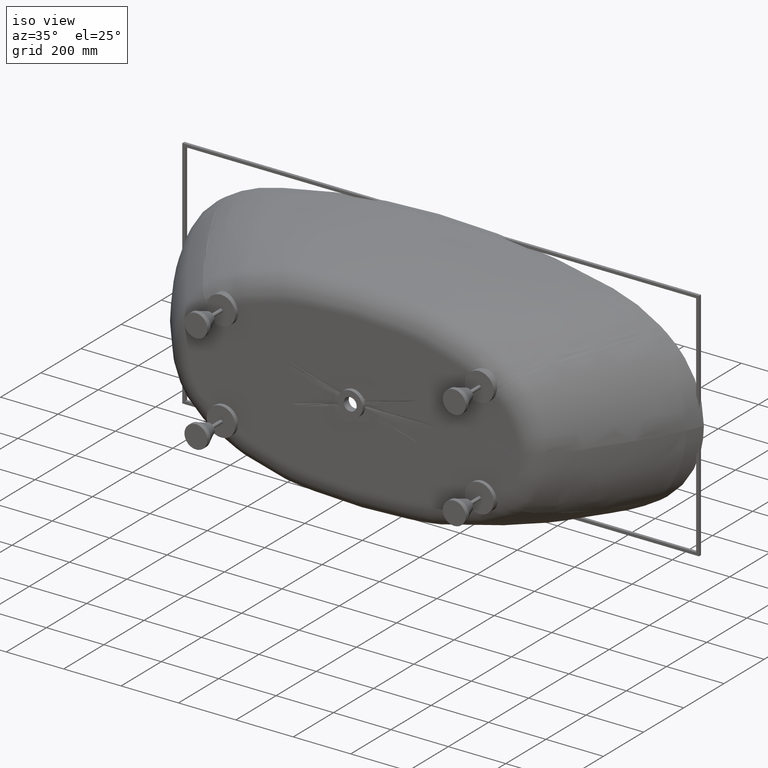
[diagram: clean part render]
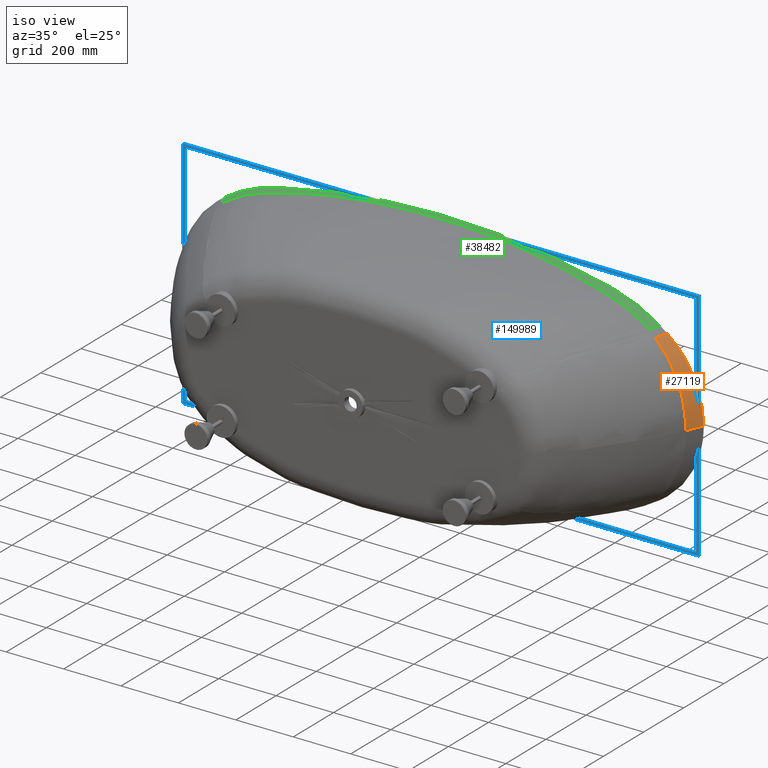
[diagram: same view with three faces highlighted in distinct colors, each labeled with its STEP entity id]
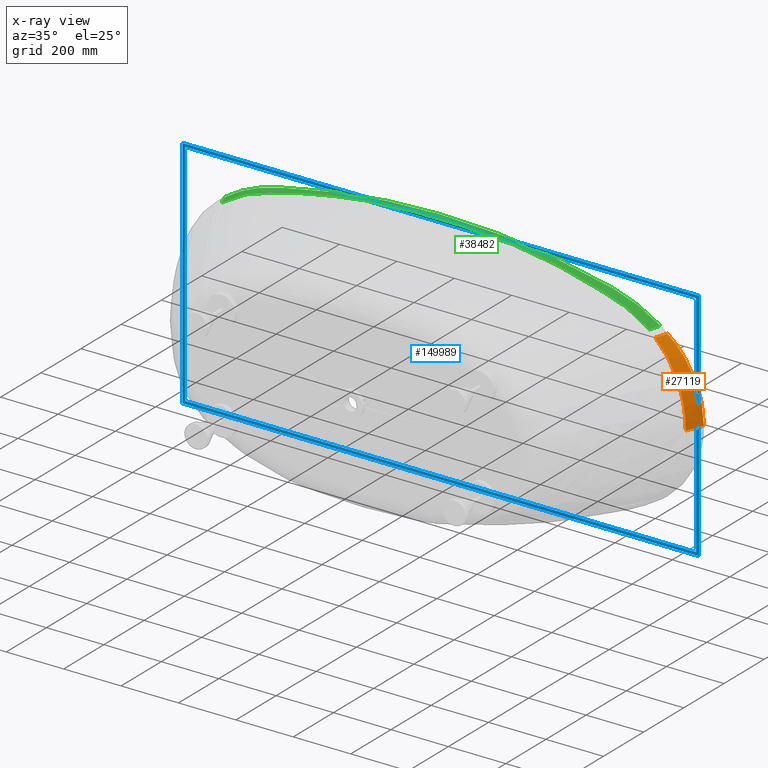
[diagram: x-ray of the same camera — body ghosted, the three highlighted faces saturated]
A machine part, iso view with three faces highlighted in distinct colors.
The next image is the same camera in x-ray (body ghosted, the three faces saturated) — at least one of them is partly hidden behind the body in this view.
Their STEP definitions:

[orange] entity #27119 — the highlighted face is a freeform B-spline surface patch.
#67 = EDGE_CURVE ( 'NONE', #15020, #107550, #100194, .T. ) ;
#90 = CARTESIAN_POINT ( 'NONE',  ( 851.1505151454210818, -50.23681161113847793, 151.9452947065063881 ) ) ;
#1620 = CARTESIAN_POINT ( 'NONE',  ( 777.9705156561507238, -40.76581769258154964, 246.8416774755015126 ) ) ;
#2965 = CARTESIAN_POINT ( 'NONE',  ( 581.7271436634080146, -529.9999999999998863, 34.17736581411067220 ) ) ;
#3847 = CARTESIAN_POINT ( 'NONE',  ( 586.5125595894539856, -524.5272914852455415, 34.29234590378923997 ) ) ;
#4674 = CARTESIAN_POINT ( 'NONE',  ( 906.0292951633425673, 0.0000000000000000000, 50.62087967142603873 ) ) ;
#4722 = CARTESIAN_POINT ( 'NONE',  ( 596.3166840032241680, -513.1901560176382873, 34.73643089469056378 ) ) ;
#4988 = B_SPLINE_CURVE_WITH_KNOTS ( 'NONE', 3,
 ( #57908, #140493, #112080, #98755, #166257, #31290, #4674, #17984, #112957, #126274, #29943, #59005, #34284 ),
 .UNSPECIFIED., .F., .F.,
 ( 4, 1, 1, 1, 1, 1, 1, 1, 1, 1, 4 ),
 ( 0.0000000000000000000, 0.005398302790372788706, 0.006747878487965763838, 0.008097454185558961015, 0.01012181773194864576, 0.01079660558074535537, 0.01349575697593174972, 0.05398302790372668664, 0.05735696714770960325, 0.06073090639169252680, 0.06747878487965836003 ),
 .UNSPECIFIED. ) ;
#5603 = CARTESIAN_POINT ( 'NONE',  ( 611.3282955484232843, -495.3935620339713068, 35.72722331390182404 ) ) ;
#6200 = CARTESIAN_POINT ( 'NONE',  ( 878.0643174509962137, -54.77953967532705803, 75.21678496098769529 ) ) ;
#6439 = CARTESIAN_POINT ( 'NONE',  ( 832.9202198448982699, -47.49148714256676840, 183.3734145107940776 ) ) ;
#6469 = CARTESIAN_POINT ( 'NONE',  ( 626.1098633179268518, -477.4055927119193825, 36.72113315130854971 ) ) ;
#7061 = CARTESIAN_POINT ( 'NONE',  ( 845.5674857695161108, -49.36257184189933156, 162.6380820809852423 ) ) ;
#7334 = CARTESIAN_POINT ( 'NONE',  ( 635.4754651080731946, -465.7036444895246632, 37.17086219156684734 ) ) ;
#7660 = EDGE_CURVE ( 'NONE', #155108, #17808, #4988, .T. ) ;
#8195 = CARTESIAN_POINT ( 'NONE',  ( 667.7480037321630562, -424.8699886955290594, 38.01644621466119389 ) ) ;
#9073 = CARTESIAN_POINT ( 'NONE',  ( 720.3735986691522157, -352.9895538218829643, 40.37183043007683381 ) ) ;
#9946 = CARTESIAN_POINT ( 'NONE',  ( 790.9213192864292523, -240.3940254975458686, 45.00717575776765500 ) ) ;
#10546 = CARTESIAN_POINT ( 'NONE',  ( 822.6363347477579282, -46.04466013154725346, 198.2865199877457769 ) ) ;
#10825 = CARTESIAN_POINT ( 'NONE',  ( 853.2515323243621879, -123.0307649249319724, 49.15366877725153927 ) ) ;
#11644 = CARTESIAN_POINT ( 'NONE',  ( 872.8434413145490680, -53.84408420560337305, 95.84419333609019986 ) ) ;
#11710 = CARTESIAN_POINT ( 'NONE',  ( 889.3558545455904323, -41.56492202878080633, 50.53689798667641497 ) ) ;
#12592 = CARTESIAN_POINT ( 'NONE',  ( 906.0292951633425673, 0.0000000000000000000, 50.62087967142603873 ) ) ;
#14058 = CARTESIAN_POINT ( 'NONE',  ( 885.0073825832380408, -56.05336106872088209, 30.33479084804068648 ) ) ;
#14260 = CARTESIAN_POINT ( 'NONE',  ( 881.0597921858516202, -55.33969242004080513, 60.34019623502134522 ) ) ;
#15020 = VERTEX_POINT ( 'NONE', #107765 ) ;
#15128 = CARTESIAN_POINT ( 'NONE',  ( 811.5257793989042057, -44.58177191155732544, 212.4697782785125355 ) ) ;
#16268 = CARTESIAN_POINT ( 'NONE',  ( 583.2482675523610851, -529.9999999999998863, 20.19944088115538960 ) ) ;
#17154 = CARTESIAN_POINT ( 'NONE',  ( 588.0433642512068673, -524.5295013838792784, 20.26710685760923880 ) ) ;
#17808 = VERTEX_POINT ( 'NONE', #41168 ) ;
#17984 = CARTESIAN_POINT ( 'NONE',  ( 895.3363143709987071, 0.0000000000000000000, 113.9866341041921345 ) ) ;
#18033 = CARTESIAN_POINT ( 'NONE',  ( 597.8670656044444058, -513.1932062416728968, 20.53009201020828201 ) ) ;
#18911 = CARTESIAN_POINT ( 'NONE',  ( 612.9090322971105707, -495.3925569188499480, 21.11810782447551560 ) ) ;
#19775 = CARTESIAN_POINT ( 'NONE',  ( 627.7220032374067387, -477.4009517886475464, 21.70798153335494973 ) ) ;
#20642 = CARTESIAN_POINT ( 'NONE',  ( 637.1093216389632516, -465.7007632816899445, 21.97433479601376760 ) ) ;
#21511 = CARTESIAN_POINT ( 'NONE',  ( 669.4615930912381145, -424.8877346935455535, 22.47218472374418496 ) ) ;
#22385 = CARTESIAN_POINT ( 'NONE',  ( 722.2574413507795725, -353.0309556572630072, 23.86657178013947345 ) ) ;
#23255 = CARTESIAN_POINT ( 'NONE',  ( 793.0973114592435422, -240.4423449340617651, 26.61855326511009423 ) ) ;
#24137 = CARTESIAN_POINT ( 'NONE',  ( 855.6937288415807643, -123.0638433614307417, 29.08270090265984820 ) ) ;
#25026 = CARTESIAN_POINT ( 'NONE',  ( 891.9162395949867914, -41.57709656277530996, 29.90468621929549897 ) ) ;
#25906 = CARTESIAN_POINT ( 'NONE',  ( 908.6234101523943991, 0.0000000000000000000, 29.95410958223345688 ) ) ;
#27119 = ADVANCED_FACE ( 'NONE', ( #151222 ), #145730, .T. ) ;
#29585 = CARTESIAN_POINT ( 'NONE',  ( 584.0538724203408947, -530.0000000000000000, -2.168404344971008868E-14 ) ) ;
#29943 = CARTESIAN_POINT ( 'NONE',  ( 802.8407740260263381, 0.0000000000000000000, 240.1346449953277045 ) ) ;
#30465 = CARTESIAN_POINT ( 'NONE',  ( 588.8540996162562351, -524.5306843626375439, -1.301042606982605321E-14 ) ) ;
#31290 = CARTESIAN_POINT ( 'NONE',  ( 907.1666489326321425, 0.0000000000000000000, 42.78032932271930378 ) ) ;
#31337 = CARTESIAN_POINT ( 'NONE',  ( 598.6882298212598243, -513.1948342293126188, -3.035766082959412415E-14 ) ) ;
#32215 = CARTESIAN_POINT ( 'NONE',  ( 613.7464478846261500, -495.3920031906378085, 2.775557561562891351E-14 ) ) ;
#33083 = CARTESIAN_POINT ( 'NONE',  ( 628.5762316241039116, -477.3984481607075168, 5.334274688628681815E-14 ) ) ;
#33946 = CARTESIAN_POINT ( 'NONE',  ( 637.9751248543851716, -465.6992112952000866, 3.755359838792257481E-14 ) ) ;
#34284 = CARTESIAN_POINT ( 'NONE',  ( 783.4307771013094452, 0.0000000000000000000, 255.8280958433930437 ) ) ;
#34813 = CARTESIAN_POINT ( 'NONE',  ( 670.3697095004283710, -424.8972937225196915, -3.710177290293281996E-13 ) ) ;
#35685 = CARTESIAN_POINT ( 'NONE',  ( 723.2560699596950826, -353.0532373057500308, -7.064661355915546892E-13 ) ) ;
#35856 = CARTESIAN_POINT ( 'NONE',  ( 799.6154856485763958, -43.13467308745401141, 225.9502733374858963 ) ) ;
#36565 = CARTESIAN_POINT ( 'NONE',  ( 794.2514535971876057, -240.4683073487990441, -5.295243410419203656E-13 ) ) ;
#37194 = CARTESIAN_POINT ( 'NONE',  ( 886.2790770039325707, -56.27698429815342962, 6.098225426614976463 ) ) ;
#37448 = CARTESIAN_POINT ( 'NONE',  ( 856.9895974016982336, -123.0815802658810725, -1.882174971434835697E-13 ) ) ;
#38338 = CARTESIAN_POINT ( 'NONE',  ( 893.2749536634433980, -41.58361370111050803, -2.255140518769849223E-14 ) ) ;
#38808 = CARTESIAN_POINT ( 'NONE',  ( 902.3858159655151212, -18.93120540103513605, -1.782650744937335799E-14 ) ) ;
#39229 = CARTESIAN_POINT ( 'NONE',  ( 910.0000000000001137, 0.0000000000000000000, -1.387778780781445676E-14 ) ) ;
#41168 = CARTESIAN_POINT ( 'NONE',  ( 783.4307771013094452, 0.0000000000000000000, 255.8280958433930437 ) ) ;
#42453 = CARTESIAN_POINT ( 'NONE',  ( 883.7408009525169064, -55.83037031163764397, 42.37552817460097287 ) ) ;
#43792 = CARTESIAN_POINT ( 'NONE',  ( 520.3221895723933130, -529.9999999999995453, 166.9807484155935811 ) ) ;
#44669 = CARTESIAN_POINT ( 'NONE',  ( 524.7187537414301914, -524.4451786575376673, 167.5885907137824518 ) ) ;
#45106 = CARTESIAN_POINT ( 'NONE',  ( 837.7822043543532118, -48.20193055543627736, 175.6643512691302362 ) ) ;
#45300 = CARTESIAN_POINT ( 'NONE',  ( 778.5212754662351244, -13.37480992115097145, 255.6708719860630765 ) ) ;
#45551 = CARTESIAN_POINT ( 'NONE',  ( 533.7644773164731760, -513.0728498509511155, 169.7655104892082818 ) ) ;
#46389 = CARTESIAN_POINT ( 'NONE',  ( 877.3920460795591225, -54.65688535774420131, 78.18315542384767980 ) ) ;
#46421 = CARTESIAN_POINT ( 'NONE',  ( 547.6440950704435409, -495.4180080149213836, 174.4870627140053614 ) ) ;
#47284 = CARTESIAN_POINT ( 'NONE',  ( 561.2584345835248314, -477.5621566647523650, 179.2169648680247462 ) ) ;
#48156 = CARTESIAN_POINT ( 'NONE',  ( 569.7934142887335156, -465.8027620170796013, 181.4074613059619310 ) ) ;
#48185 = B_SPLINE_CURVE_WITH_KNOTS ( 'NONE', 3,
 ( #112754, #166925, #45300, #99428 ),
 .UNSPECIFIED., .F., .F.,
 ( 4, 4 ),
 ( 0.9298929286219101975, 1.000000000000000000 ),
 .UNSPECIFIED. ) ;
#49013 = CARTESIAN_POINT ( 'NONE',  ( 598.9287916849142448, -424.2595018620880296, 185.8000327805242193 ) ) ;
#49874 = CARTESIAN_POINT ( 'NONE',  ( 644.9040373560947046, -351.5489892594657135, 196.6393166316809413 ) ) ;
#50743 = CARTESIAN_POINT ( 'NONE',  ( 704.0915421531759648, -238.6780879823639907, 216.5320476931554197 ) ) ;
#51126 = ORIENTED_EDGE ( 'NONE', *, *, #7660, .T. ) ;
#51639 = CARTESIAN_POINT ( 'NONE',  ( 756.0614250242758771, -121.8261241839318672, 233.8905371397910073 ) ) ;
#52521 = CARTESIAN_POINT ( 'NONE',  ( 787.5221783746885649, -41.11255493963616914, 239.6906757793818201 ) ) ;
#53401 = CARTESIAN_POINT ( 'NONE',  ( 802.8407740260263381, 0.0000000000000000000, 240.1346449953277045 ) ) ;
#53790 = CARTESIAN_POINT ( 'NONE',  ( 831.2558456662765138, -47.25234237830725448, 185.9028372567047711 ) ) ;
#53997 = CARTESIAN_POINT ( 'NONE',  ( 886.1196166426674381, -56.24779883899729782, 12.17682268518416855 ) ) ;
#57077 = CARTESIAN_POINT ( 'NONE',  ( 575.4497005689245270, -529.9999999999992042, 77.12073450596626856 ) ) ;
#57360 = B_SPLINE_CURVE_WITH_KNOTS ( 'NONE', 3,
 ( #106269, #160439, #38808, #92937 ),
 .UNSPECIFIED., .F., .F.,
 ( 4, 4 ),
 ( 0.9020834564577601133, 1.000000000000000000 ),
 .UNSPECIFIED. ) ;
#57908 = CARTESIAN_POINT ( 'NONE',  ( 910.0000000000001137, 0.0000000000000000000, -1.387778780781445676E-14 ) ) ;
#57956 = CARTESIAN_POINT ( 'NONE',  ( 580.1951813451019007, -524.5182296553723518, 77.38201652319995105 ) ) ;
#58563 = CARTESIAN_POINT ( 'NONE',  ( 826.1634816142250202, -46.53093467731026323, 193.4032716888731613 ) ) ;
#58839 = CARTESIAN_POINT ( 'NONE',  ( 589.9188791094674116, -513.1774518489611410, 78.38150629149880899 ) ) ;
#59005 = CARTESIAN_POINT ( 'NONE',  ( 791.3905310018714090, 0.0000000000000000000, 249.7535948866545823 ) ) ;
#59446 = CARTESIAN_POINT ( 'NONE',  ( 791.2292211186629629, -42.17780489137058453, 234.5451915447901854 ) ) ;
#59715 = CARTESIAN_POINT ( 'NONE',  ( 604.8062166213927640, -495.3970448464845049, 80.60384195205313063 ) ) ;
#60569 = ORIENTED_EDGE ( 'NONE', *, *, #159955, .F. ) ;
#60586 = CARTESIAN_POINT ( 'NONE',  ( 619.4590880914731770, -477.4238369886524538, 82.83288088472635025 ) ) ;
#61460 = CARTESIAN_POINT ( 'NONE',  ( 628.7352387367460551, -465.7150660033358349, 83.84443468632538554 ) ) ;
#62327 = CARTESIAN_POINT ( 'NONE',  ( 660.6779186727821980, -424.7996410590240544, 85.76231428225061393 ) ) ;
#63194 = CARTESIAN_POINT ( 'NONE',  ( 712.6014512649617245, -352.8246248768336955, 91.05893059106850274 ) ) ;
#64067 = CARTESIAN_POINT ( 'NONE',  ( 781.9475401264766106, -240.1998226303564365, 101.4355402749165194 ) ) ;
#64670 = CARTESIAN_POINT ( 'NONE',  ( 882.9478439799163425, -55.69635304742409687, 48.37638874265040556 ) ) ;
#64951 = CARTESIAN_POINT ( 'NONE',  ( 843.1837598989252456, -122.8963351710601160, 110.7036219385013140 ) ) ;
#65840 = CARTESIAN_POINT ( 'NONE',  ( 878.8020165906057173, -41.51499957797469165, 113.7957932024028906 ) ) ;
#66726 = CARTESIAN_POINT ( 'NONE',  ( 895.3363143709987071, 0.0000000000000000000, 113.9866341041921345 ) ) ;
#69067 = CARTESIAN_POINT ( 'NONE',  ( 786.9033540590652365, -41.69620540029639955, 238.7254004018640785 ) ) ;
#70410 = CARTESIAN_POINT ( 'NONE',  ( 582.8314859319294783, -529.9999999999998863, 24.87614341922702010 ) ) ;
#71273 = EDGE_LOOP ( 'NONE', ( #60569, #96819, #125644, #51126 ) ) ;
#71291 = CARTESIAN_POINT ( 'NONE',  ( 587.6239294581382637, -524.5288933931464044, 24.95958799874091127 ) ) ;
#72164 = CARTESIAN_POINT ( 'NONE',  ( 597.4422553355245782, -513.1923675093324846, 25.28323596529178729 ) ) ;
#73044 = CARTESIAN_POINT ( 'NONE',  ( 612.4758714346586430, -495.3928349102352513, 26.00638042264820982 ) ) ;
#73911 = CARTESIAN_POINT ( 'NONE',  ( 627.2802025969473334, -477.4022304067122491, 26.73180810876241154 ) ) ;
#74782 = CARTESIAN_POINT ( 'NONE',  ( 636.6615551974840628, -465.7015568640844663, 27.05959378054862086 ) ) ;
#75644 = CARTESIAN_POINT ( 'NONE',  ( 668.9919558983788193, -424.8828468435852983, 27.67345882068639895 ) ) ;
#76511 = CARTESIAN_POINT ( 'NONE',  ( 721.7410811577939285, -353.0195540331936286, 29.38986192188266955 ) ) ;
#77381 = CARTESIAN_POINT ( 'NONE',  ( 792.5007502419005050, -240.4290422076786058, 32.77438262681808823 ) ) ;
#78262 = CARTESIAN_POINT ( 'NONE',  ( 855.0240893394932300, -123.0547399990201001, 35.80399995842971350 ) ) ;
#79148 = CARTESIAN_POINT ( 'NONE',  ( 891.2141703956763195, -41.57374708613748027, 36.81462383556532814 ) ) ;
#80026 = CARTESIAN_POINT ( 'NONE',  ( 907.9120967166169294, 0.0000000000000000000, 36.87557192136341655 ) ) ;
#82361 = CARTESIAN_POINT ( 'NONE',  ( 773.3637313748588440, -40.31651073000434593, 250.7778557094844700 ) ) ;
#83712 = CARTESIAN_POINT ( 'NONE',  ( 584.0538724203408947, -530.0000000000000000, 5.415885985960052551 ) ) ;
#84594 = CARTESIAN_POINT ( 'NONE',  ( 588.8540996162563488, -524.5306843626374302, 5.433934454048190865 ) ) ;
#85471 = CARTESIAN_POINT ( 'NONE',  ( 598.6882298212599380, -513.1948342293125052, 5.504689202355763200 ) ) ;
#86353 = CARTESIAN_POINT ( 'NONE',  ( 613.7464478846261500, -495.3920031906378085, 5.663358700491177622 ) ) ;
#87221 = CARTESIAN_POINT ( 'NONE',  ( 628.5762316241039116, -477.3984481607075736, 5.822527059248086445 ) ) ;
#88087 = CARTESIAN_POINT ( 'NONE',  ( 637.9751248543851716, -465.6992112952001435, 5.894186792734921632 ) ) ;
#88955 = CARTESIAN_POINT ( 'NONE',  ( 670.3697095004287121, -424.8972937225194073, 6.027009294353885771 ) ) ;
#89818 = CARTESIAN_POINT ( 'NONE',  ( 723.2560699596954237, -353.0532373057495192, 6.401379748335235931 ) ) ;
#90685 = CARTESIAN_POINT ( 'NONE',  ( 794.2514535971876057, -240.4683073487983904, 7.142662553493220656 ) ) ;
#91565 = CARTESIAN_POINT ( 'NONE',  ( 856.9895974016977789, -123.0815802658806319, 7.807151401879041330 ) ) ;
#92417 = EDGE_CURVE ( 'NONE', #107550, #155108, #57360, .T. ) ;
#92466 = CARTESIAN_POINT ( 'NONE',  ( 893.2749536634432843, -41.58361370111035171, 8.028805066759613140 ) ) ;
#92937 = CARTESIAN_POINT ( 'NONE',  ( 910.0000000000001137, 0.0000000000000000000, -1.387778780781445676E-14 ) ) ;
#93081 = CARTESIAN_POINT ( 'NONE',  ( 861.0992030581425070, -51.84115449346354865, 130.0441205120692985 ) ) ;
#93356 = CARTESIAN_POINT ( 'NONE',  ( 910.0000000000001137, 0.0000000000000000000, 8.041987703522456954 ) ) ;
#96819 = ORIENTED_EDGE ( 'NONE', *, *, #67, .T. ) ;
#97924 = CARTESIAN_POINT ( 'NONE',  ( 513.4335795764633303, -529.9999999999997726, 174.2658235301193770 ) ) ;
#98755 = CARTESIAN_POINT ( 'NONE',  ( 908.6234101523943991, 0.0000000000000000000, 29.95410958223345688 ) ) ;
#98806 = CARTESIAN_POINT ( 'NONE',  ( 517.7866807083037202, -524.4365499887762780, 174.9052878014427392 ) ) ;
#99412 = CARTESIAN_POINT ( 'NONE',  ( 885.4838867572498202, -56.13571661586387762, 24.29511349992697689 ) ) ;
#99428 = CARTESIAN_POINT ( 'NONE',  ( 783.4307771013094452, 0.0000000000000000000, 255.8280958433930437 ) ) ;
#99685 = CARTESIAN_POINT ( 'NONE',  ( 526.7498572001021557, -513.0600754476138263, 177.1819176810307965 ) ) ;
#100194 = B_SPLINE_CURVE_WITH_KNOTS ( 'NONE', 3,
 ( #142242, #82361, #1620, #69067, #59446, #35856, #136545, #15128, #162339, #10546, #58563, #53790, #6439, #107299, #45106, #7061, #90, #93081, #102017, #130847, #11644, #163205, #135013, #46389, #6200, #105308, #14260, #64670, #42453, #14058, #99412, #53997, #37194, #115350 ),
 .UNSPECIFIED., .F., .F.,
 ( 4, 2, 2, 2, 2, 2, 2, 2, 2, 2, 2, 2, 2, 2, 2, 2, 4 ),
 ( 6.299124675638514505E-16, 0.01804637630921173200, 0.03609275261842283256, 0.05413912892763392964, 0.07218550523684502673, 0.09023188154605611688, 0.09925506970066154400, 0.1082782578552669572, 0.1443710104736890820, 0.1804637630921111513, 0.1985101394013222276, 0.2075333275559277657, 0.2165565157105333038, 0.2346028920197443801, 0.2526492683289554009, 0.2706956446381664771, 0.2887420209473775534 ),
 .UNSPECIFIED. ) ;
#100552 = CARTESIAN_POINT ( 'NONE',  ( 540.5099615042825008, -495.4191224658636088, 182.1080095565245642 ) ) ;
#101419 = CARTESIAN_POINT ( 'NONE',  ( 554.0015457067348734, -477.5768188463557067, 187.0419463411930394 ) ) ;
#102017 = CARTESIAN_POINT ( 'NONE',  ( 865.4645489632077897, -52.57157823116175166, 118.8356253924328314 ) ) ;
#102290 = CARTESIAN_POINT ( 'NONE',  ( 562.4472987458310627, -465.8122825717478008, 189.3309803641821816 ) ) ;
#103148 = CARTESIAN_POINT ( 'NONE',  ( 591.2386744560369607, -424.2008626545202219, 193.9431007115482828 ) ) ;
#104024 = CARTESIAN_POINT ( 'NONE',  ( 636.4872044158820472, -351.4086355569049829, 205.1687529052910861 ) ) ;
#104904 = CARTESIAN_POINT ( 'NONE',  ( 694.4354815765472040, -238.5067300063322193, 225.5898255221873683 ) ) ;
#105308 = CARTESIAN_POINT ( 'NONE',  ( 879.9595513714266417, -55.12884525833897698, 66.30278612504950786 ) ) ;
#105804 = CARTESIAN_POINT ( 'NONE',  ( 745.2736075602462051, -121.7022931400610162, 243.3506029081006261 ) ) ;
#106269 = CARTESIAN_POINT ( 'NONE',  ( 886.2790770039332529, -56.27698429815179537, -6.629655857243059887E-14 ) ) ;
#106690 = CARTESIAN_POINT ( 'NONE',  ( 776.2233701225493405, -41.06501881306694202, 249.2865289190331453 ) ) ;
#107299 = CARTESIAN_POINT ( 'NONE',  ( 836.1825554337632411, -47.96615199289797005, 178.2556884088394042 ) ) ;
#107550 = VERTEX_POINT ( 'NONE', #153615 ) ;
#107568 = CARTESIAN_POINT ( 'NONE',  ( 791.3905310018714090, 0.0000000000000000000, 249.7535948866545823 ) ) ;
#107765 = CARTESIAN_POINT ( 'NONE',  ( 768.6112695902120322, -39.89055701292922151, 254.5881823674789359 ) ) ;
#110548 = CARTESIAN_POINT ( 'NONE',  ( 910.0000000000001137, 0.0000000000000000000, -1.387778780781445676E-14 ) ) ;
#111251 = CARTESIAN_POINT ( 'NONE',  ( 557.2779828830255155, -529.9999999999985221, 119.9990857833528679 ) ) ;
#112080 = CARTESIAN_POINT ( 'NONE',  ( 909.6242265288555018, 0.0000000000000000000, 18.04673948242881210 ) ) ;
#112132 = CARTESIAN_POINT ( 'NONE',  ( 561.9080219608676998, -524.4925863321401494, 120.4142212670306975 ) ) ;
#112754 = CARTESIAN_POINT ( 'NONE',  ( 768.6112695902120322, -39.89055701292922151, 254.5881823674789359 ) ) ;
#112957 = CARTESIAN_POINT ( 'NONE',  ( 864.5096319821501538, 0.0000000000000000000, 176.1575523908364005 ) ) ;
#113006 = CARTESIAN_POINT ( 'NONE',  ( 571.4011635329673027, -513.1414217263695718, 121.9625950119955462 ) ) ;
#113885 = CARTESIAN_POINT ( 'NONE',  ( 585.9356373393726471, -495.4066417205755215, 125.3737157589942512 ) ) ;
#114746 = CARTESIAN_POINT ( 'NONE',  ( 600.2240064756314268, -477.4751463756225007, 128.7937912910707894 ) ) ;
#115350 = CARTESIAN_POINT ( 'NONE',  ( 886.2790770039332529, -56.27698429815179537, -6.629655857243059887E-14 ) ) ;
#115620 = CARTESIAN_POINT ( 'NONE',  ( 609.2458034472689405, -465.7472275093064127, 130.3579415702735673 ) ) ;
#116488 = CARTESIAN_POINT ( 'NONE',  ( 640.2458805072856194, -424.6015512113155523, 133.3889605794214503 ) ) ;
#117358 = CARTESIAN_POINT ( 'NONE',  ( 690.1602897510070989, -352.3598683162651355, 141.5293546903285744 ) ) ;
#118242 = CARTESIAN_POINT ( 'NONE',  ( 756.0620989345725320, -239.6518583000488718, 157.2378759051988766 ) ) ;
#119127 = CARTESIAN_POINT ( 'NONE',  ( 814.1581407711159954, -122.5164140803043011, 171.1955666267189713 ) ) ;
#120012 = CARTESIAN_POINT ( 'NONE',  ( 848.3775584455332819, -41.37372816143685128, 175.8543366130780612 ) ) ;
#120888 = CARTESIAN_POINT ( 'NONE',  ( 864.5096319821501538, 0.0000000000000000000, 176.1575523908364005 ) ) ;
#124566 = CARTESIAN_POINT ( 'NONE',  ( 582.3944087533348011, -529.9999999999998863, 28.86980398199377973 ) ) ;
#125445 = CARTESIAN_POINT ( 'NONE',  ( 587.1840705475125333, -524.5282581304375071, 28.96676716133753260 ) ) ;
#125644 = ORIENTED_EDGE ( 'NONE', *, *, #92417, .T. ) ;
#126274 = CARTESIAN_POINT ( 'NONE',  ( 817.0859515851816468, 0.0000000000000000000, 226.3785214334284603 ) ) ;
#126323 = CARTESIAN_POINT ( 'NONE',  ( 596.9967697107307458, -513.1914911379036539, 29.34215260434078942 ) ) ;
#127196 = CARTESIAN_POINT ( 'NONE',  ( 612.0216593805853336, -495.3931253159645962, 30.18035947370335492 ) ) ;
#128058 = CARTESIAN_POINT ( 'NONE',  ( 626.8169631195322609, -477.4035663103979914, 31.02120988788435341 ) ) ;
#128932 = CARTESIAN_POINT ( 'NONE',  ( 636.1920744822206188, -465.7023860093613052, 31.40138420740522918 ) ) ;
#129800 = CARTESIAN_POINT ( 'NONE',  ( 668.4995657126584092, -424.8777399539478097, 32.11460816178982469 ) ) ;
#130675 = CARTESIAN_POINT ( 'NONE',  ( 721.1997654945361091, -353.0076413974658180, 34.10559216978186470 ) ) ;
#130847 = CARTESIAN_POINT ( 'NONE',  ( 871.1116400516033309, -53.54161243355156330, 101.6400317541516358 ) ) ;
#131550 = CARTESIAN_POINT ( 'NONE',  ( 791.8754708134376870, -240.4151431154913610, 38.02822942163840025 ) ) ;
#132431 = CARTESIAN_POINT ( 'NONE',  ( 854.3223004497896227, -123.0452284016603812, 41.53852551824794404 ) ) ;
#133325 = CARTESIAN_POINT ( 'NONE',  ( 890.4784147773361838, -41.57024736568493495, 42.70950722488711904 ) ) ;
#134209 = CARTESIAN_POINT ( 'NONE',  ( 907.1666489326321425, 0.0000000000000000000, 42.78032932271930378 ) ) ;
#135013 = CARTESIAN_POINT ( 'NONE',  ( 875.9654872730870920, -54.39919640229204845, 84.10585797664538177 ) ) ;
#136545 = CARTESIAN_POINT ( 'NONE',  ( 803.6750644530480940, -43.61304885312743806, 221.5351708233834245 ) ) ;
#137885 = CARTESIAN_POINT ( 'NONE',  ( 583.8343504096354764, -530.0000000000000000, 12.15971114781791051 ) ) ;
#138778 = CARTESIAN_POINT ( 'NONE',  ( 588.6331787390374757, -524.5303589411666962, 12.20032020101621484 ) ) ;
#139655 = CARTESIAN_POINT ( 'NONE',  ( 598.4644536567933528, -513.1943853959708122, 12.35890683622056585 ) ) ;
#140493 = CARTESIAN_POINT ( 'NONE',  ( 910.0000000000000000, 0.0000000000000000000, 8.041987703522456954 ) ) ;
#140540 = CARTESIAN_POINT ( 'NONE',  ( 613.5182036098857452, -495.3921522769781518, 12.71407753243462757 ) ) ;
#141406 = CARTESIAN_POINT ( 'NONE',  ( 628.3433627645422348, -477.3991328911583878, 13.07036860679227530 ) ) ;
#142242 = CARTESIAN_POINT ( 'NONE',  ( 768.6112695902120322, -39.89055701292922151, 254.5881823674789359 ) ) ;
#142270 = CARTESIAN_POINT ( 'NONE',  ( 637.7390814546505453, -465.6996362338294944, 13.23098734214033634 ) ) ;
#143138 = CARTESIAN_POINT ( 'NONE',  ( 670.1220966802334260, -424.8946764312627806, 13.52981832344663182 ) ) ;
#144005 = CARTESIAN_POINT ( 'NONE',  ( 722.9836934549614398, -353.0471324622290012, 14.37003529632749377 ) ) ;
#144877 = CARTESIAN_POINT ( 'NONE',  ( 793.9365147091805284, -240.4611853755546349, 16.03162900981523009 ) ) ;
#145730 = B_SPLINE_SURFACE_WITH_KNOTS ( 'NONE', 3, 3, ( 
 ( #29585, #83712, #137885, #16268, #70410, #124566, #2965, #57077, #111251, #165424, #43792, #97924, #152102 ),
 ( #30465, #84594, #138778, #17154, #71291, #125445, #3847, #57956, #112132, #166306, #44669, #98806, #152983 ),
 ( #31337, #85471, #139655, #18033, #72164, #126323, #4722, #58839, #113006, #167181, #45551, #99685, #153865 ),
 ( #32215, #86353, #140540, #18911, #73044, #127196, #5603, #59715, #113885, #168049, #46421, #100552, #154732 ),
 ( #33083, #87221, #141406, #19775, #73911, #128058, #6469, #60586, #114746, #168918, #47284, #101419, #155590 ),
 ( #33946, #88087, #142270, #20642, #74782, #128932, #7334, #61460, #115620, #169793, #48156, #102290, #156458 ),
 ( #34813, #88955, #143138, #21511, #75644, #129800, #8195, #62327, #116488, #170661, #49013, #103148, #157319 ),
 ( #35685, #89818, #144005, #22385, #76511, #130675, #9073, #63194, #117358, #171538, #49874, #104024, #158189 ),
 ( #36565, #90685, #144877, #23255, #77381, #131550, #9946, #64067, #118242, #172421, #50743, #104904, #159073 ),
 ( #37448, #91565, #145759, #24137, #78262, #132431, #10825, #64951, #119127, #173299, #51639, #105804, #159971 ),
 ( #38338, #92466, #146662, #25026, #79148, #133325, #11710, #65840, #120012, #174179, #52521, #106690, #160865 ),
 ( #39229, #93356, #147543, #25906, #80026, #134209, #12592, #66726, #120888, #175062, #53401, #107568, #161746 ) ),
 .UNSPECIFIED., .F., .F., .F.,
 ( 4, 1, 1, 1, 2, 1, 1, 1, 4 ),
 ( 4, 1, 1, 1, 1, 1, 1, 1, 1, 1, 4 ),
 ( 0.0000000000000000000, 0.03491999662177736746, 0.06983999324355473493, 0.1047599898653321232, 0.1396799864871094699, 0.3547599898653320816, 0.5698399932435547210, 0.7849199966217770275, 1.000000000000000000 ),
 ( 0.0000000000000000000, 0.005398302790372788706, 0.006747878487965763838, 0.008097454185558961015, 0.01012181773194864576, 0.01079660558074535537, 0.01349575697593174972, 0.05398302790372668664, 0.05735696714770960325, 0.06073090639169252680, 0.06747878487965836003 ),
 .UNSPECIFIED. ) ;
#145759 = CARTESIAN_POINT ( 'NONE',  ( 856.6358762065156043, -123.0767072173669874, 17.52044899781324716 ) ) ;
#146662 = CARTESIAN_POINT ( 'NONE',  ( 892.9040541506135469, -41.58182092442055477, 18.01707854971241929 ) ) ;
#147543 = CARTESIAN_POINT ( 'NONE',  ( 909.6242265288555018, 0.0000000000000000000, 18.04673948242881210 ) ) ;
#151222 = FACE_OUTER_BOUND ( 'NONE', #71273, .T. ) ;
#152102 = CARTESIAN_POINT ( 'NONE',  ( 508.6357971869391008, -529.9999999999997726, 178.9461250806884891 ) ) ;
#152983 = CARTESIAN_POINT ( 'NONE',  ( 512.9586463465692532, -524.4306103565511421, 179.6065063041362180 ) ) ;
#153615 = CARTESIAN_POINT ( 'NONE',  ( 886.2790770039332529, -56.27698429815179537, -6.629655857243059887E-14 ) ) ;
#153865 = CARTESIAN_POINT ( 'NONE',  ( 521.8646330358272962, -513.0512321293813329, 181.9480013185974769 ) ) ;
#154732 = CARTESIAN_POINT ( 'NONE',  ( 535.5423932111044678, -495.4197273458498216, 187.0060789805546619 ) ) ;
#155108 = VERTEX_POINT ( 'NONE', #110548 ) ;
#155590 = CARTESIAN_POINT ( 'NONE',  ( 548.9494634695414561, -477.5867119995720032, 192.0715858243524110 ) ) ;
#156458 = CARTESIAN_POINT ( 'NONE',  ( 557.3335507488311578, -465.8187362881587887, 194.4245460527293972 ) ) ;
#157319 = CARTESIAN_POINT ( 'NONE',  ( 585.8863149410348115, -424.1611127839065034, 199.1811115406180193 ) ) ;
#158189 = CARTESIAN_POINT ( 'NONE',  ( 630.6310478956457928, -351.3132517060220721, 210.6441098364835511 ) ) ;
#159073 = CARTESIAN_POINT ( 'NONE',  ( 687.7204492341340938, -238.3897734123637235, 231.3622540021710563 ) ) ;
#159955 = EDGE_CURVE ( 'NONE', #15020, #17808, #48185, .T. ) ;
#159971 = CARTESIAN_POINT ( 'NONE',  ( 737.7739695601097765, -121.6173602901784960, 249.3372254263549905 ) ) ;
#160439 = CARTESIAN_POINT ( 'NONE',  ( 894.4778158751471437, -37.68942666138357822, -3.714538943109362943E-14 ) ) ;
#160865 = CARTESIAN_POINT ( 'NONE',  ( 768.3690207406353920, -41.03229683508454428, 255.3457520925993549 ) ) ;
#161746 = CARTESIAN_POINT ( 'NONE',  ( 783.4307771013094452, 0.0000000000000000000, 255.8280958433930437 ) ) ;
#162339 = CARTESIAN_POINT ( 'NONE',  ( 815.3174863371705214, -45.07008012130419417, 207.8197758030910336 ) ) ;
#163205 = CARTESIAN_POINT ( 'NONE',  ( 875.2132575072262171, -54.26453468220860543, 87.05349501010900326 ) ) ;
#165424 = CARTESIAN_POINT ( 'NONE',  ( 528.8701676872442476, -529.9999999999992042, 156.7812317897274283 ) ) ;
#166257 = CARTESIAN_POINT ( 'NONE',  ( 907.9120967166169294, 0.0000000000000000000, 36.87557192136341655 ) ) ;
#166306 = CARTESIAN_POINT ( 'NONE',  ( 533.3207111395867059, -524.4560561129306961, 157.3464676761641954 ) ) ;
#166925 = CARTESIAN_POINT ( 'NONE',  ( 773.5867236595141776, -26.67102076915595532, 255.2456974783171120 ) ) ;
#167181 = CARTESIAN_POINT ( 'NONE',  ( 542.4696024305832225, -513.0888346054258591, 159.3858734960195136 ) ) ;
#168049 = CARTESIAN_POINT ( 'NONE',  ( 556.4996985942395895, -495.4162167298227359, 163.8222181947720628 ) ) ;
#168918 = CARTESIAN_POINT ( 'NONE',  ( 570.2687520868321371, -477.5431976996559342, 168.2673652272537197 ) ) ;
#169793 = CARTESIAN_POINT ( 'NONE',  ( 578.9156138990903173, -465.7905224569109350, 170.3214714375417316 ) ) ;
#170661 = CARTESIAN_POINT ( 'NONE',  ( 608.4802251020558970, -424.3348880275258352, 174.4160531320930829 ) ) ;
#171538 = CARTESIAN_POINT ( 'NONE',  ( 655.3629333043238603, -351.7288507136566409, 184.6847014642690681 ) ) ;
#172421 = CARTESIAN_POINT ( 'NONE',  ( 716.0984413992929376, -238.8964847863943817, 203.7217165820320872 ) ) ;
#173299 = CARTESIAN_POINT ( 'NONE',  ( 769.4815641620427868, -121.9829600918197201, 220.3957351694397175 ) ) ;
#174179 = CARTESIAN_POINT ( 'NONE',  ( 801.5792802495784599, -41.17247983774202424, 225.9656720248342481 ) ) ;
#175062 = CARTESIAN_POINT ( 'NONE',  ( 817.0859515851816468, 0.0000000000000000000, 226.3785214334284603 ) ) ;

[blue] entity #149989 — the highlighted planar face has unit normal (-0, 1, 0).
#2481 = FACE_OUTER_BOUND ( 'NONE', #147043, .T. ) ;
#8400 = CARTESIAN_POINT ( 'NONE',  ( -889.9999999999998863, -10.00000000000000000, 399.9989298930360064 ) ) ;
#13168 = VECTOR ( 'NONE', #70124, 1000.000000000000000 ) ;
#13380 = VERTEX_POINT ( 'NONE', #129878 ) ;
#15982 = CARTESIAN_POINT ( 'NONE',  ( -889.9999999999998863, -10.00000000000000000, -399.9989298930360064 ) ) ;
#16437 = VECTOR ( 'NONE', #148809, 1000.000000000000000 ) ;
#17224 = EDGE_LOOP ( 'NONE', ( #126711, #174099, #19493, #103733 ) ) ;
#17308 = VECTOR ( 'NONE', #32594, 1000.000000000000000 ) ;
#17573 = LINE ( 'NONE', #71706, #169148 ) ;
#19493 = ORIENTED_EDGE ( 'NONE', *, *, #47512, .T. ) ;
#24048 = AXIS2_PLACEMENT_3D ( 'NONE', #110762, #164936, #43305 ) ;
#24717 = DIRECTION ( 'NONE',  ( -1.353934051626428749E-16, 0.0000000000000000000, -1.000000000000000000 ) ) ;
#27961 = CARTESIAN_POINT ( 'NONE',  ( -899.9999999999998863, -10.00000000000000000, -409.9989298930360064 ) ) ;
#32594 = DIRECTION ( 'NONE',  ( 0.0000000000000000000, 0.0000000000000000000, -1.000000000000000000 ) ) ;
#38756 = CARTESIAN_POINT ( 'NONE',  ( -899.9999999999998863, -10.00000000000000000, 409.9989298930360064 ) ) ;
#40497 = LINE ( 'NONE', #94629, #16437 ) ;
#43305 = DIRECTION ( 'NONE',  ( 0.0000000000000000000, -0.0000000000000000000, 1.000000000000000000 ) ) ;
#46487 = VERTEX_POINT ( 'NONE', #134996 ) ;
#47512 = EDGE_CURVE ( 'NONE', #13380, #83692, #137595, .T. ) ;
#54535 = VERTEX_POINT ( 'NONE', #87809 ) ;
#56592 = PLANE ( 'NONE',  #24048 ) ;
#57046 = CARTESIAN_POINT ( 'NONE',  ( -899.9999999999998863, -10.00000000000000000, -409.9989298930360064 ) ) ;
#57098 = EDGE_CURVE ( 'NONE', #54535, #94212, #92150, .T. ) ;
#62533 = DIRECTION ( 'NONE',  ( -0.0000000000000000000, -0.0000000000000000000, 1.000000000000000000 ) ) ;
#67542 = EDGE_CURVE ( 'NONE', #77090, #146364, #40497, .T. ) ;
#68011 = CARTESIAN_POINT ( 'NONE',  ( -889.9999999999998863, -10.00000000000000000, -399.9989298930360064 ) ) ;
#70124 = DIRECTION ( 'NONE',  ( -1.000000000000000000, -0.0000000000000000000, -0.0000000000000000000 ) ) ;
#71706 = CARTESIAN_POINT ( 'NONE',  ( -889.9999999999998863, -10.00000000000000000, 399.9989298930360064 ) ) ;
#72459 = VECTOR ( 'NONE', #24717, 1000.000000000000000 ) ;
#75605 = VECTOR ( 'NONE', #82068, 1000.000000000000000 ) ;
#77090 = VERTEX_POINT ( 'NONE', #57046 ) ;
#77616 = CARTESIAN_POINT ( 'NONE',  ( 899.9999999999997726, -10.00000000000000000, -409.9989298930360064 ) ) ;
#82068 = DIRECTION ( 'NONE',  ( -1.000000000000000000, -0.0000000000000000000, -0.0000000000000000000 ) ) ;
#83692 = VERTEX_POINT ( 'NONE', #68011 ) ;
#87255 = CARTESIAN_POINT ( 'NONE',  ( 889.9999999999997726, -10.00000000000000000, 399.9989298930360064 ) ) ;
#87809 = CARTESIAN_POINT ( 'NONE',  ( 899.9999999999998863, -10.00000000000000000, 409.9989298930360064 ) ) ;
#89535 = ORIENTED_EDGE ( 'NONE', *, *, #57098, .F. ) ;
#92150 = LINE ( 'NONE', #146346, #72459 ) ;
#92884 = DIRECTION ( 'NONE',  ( 1.000000000000000000, 0.0000000000000000000, 0.0000000000000000000 ) ) ;
#93560 = CARTESIAN_POINT ( 'NONE',  ( -899.9999999999998863, -10.00000000000000000, 409.9989298930360064 ) ) ;
#94212 = VERTEX_POINT ( 'NONE', #77616 ) ;
#94629 = CARTESIAN_POINT ( 'NONE',  ( -899.9999999999998863, -10.00000000000000000, 409.9989298930360064 ) ) ;
#96756 = ORIENTED_EDGE ( 'NONE', *, *, #169420, .F. ) ;
#97248 = VERTEX_POINT ( 'NONE', #87255 ) ;
#100065 = LINE ( 'NONE', #154244, #17308 ) ;
#103733 = ORIENTED_EDGE ( 'NONE', *, *, #144690, .T. ) ;
#110762 = CARTESIAN_POINT ( 'NONE',  ( 0.0000000000000000000, -10.00000000000000000, 0.0000000000000000000 ) ) ;
#113098 = EDGE_CURVE ( 'NONE', #94212, #77090, #149592, .T. ) ;
#124078 = FACE_BOUND ( 'NONE', #17224, .T. ) ;
#125866 = DIRECTION ( 'NONE',  ( 1.000000000000000000, 0.0000000000000000000, 0.0000000000000000000 ) ) ;
#126711 = ORIENTED_EDGE ( 'NONE', *, *, #167368, .T. ) ;
#129878 = CARTESIAN_POINT ( 'NONE',  ( 889.9999999999997726, -10.00000000000000000, -399.9989298930360064 ) ) ;
#130007 = LINE ( 'NONE', #8400, #136648 ) ;
#133307 = ORIENTED_EDGE ( 'NONE', *, *, #113098, .F. ) ;
#134191 = ORIENTED_EDGE ( 'NONE', *, *, #67542, .F. ) ;
#134996 = CARTESIAN_POINT ( 'NONE',  ( -889.9999999999998863, -10.00000000000000000, 399.9989298930360064 ) ) ;
#136648 = VECTOR ( 'NONE', #62533, 1000.000000000000000 ) ;
#137595 = LINE ( 'NONE', #15982, #13168 ) ;
#144690 = EDGE_CURVE ( 'NONE', #83692, #46487, #130007, .T. ) ;
#146346 = CARTESIAN_POINT ( 'NONE',  ( 899.9999999999998863, -10.00000000000000000, 409.9989298930360064 ) ) ;
#146364 = VERTEX_POINT ( 'NONE', #93560 ) ;
#147043 = EDGE_LOOP ( 'NONE', ( #96756, #134191, #133307, #89535 ) ) ;
#148809 = DIRECTION ( 'NONE',  ( -0.0000000000000000000, -0.0000000000000000000, 1.000000000000000000 ) ) ;
#149271 = VECTOR ( 'NONE', #92884, 1000.000000000000000 ) ;
#149592 = LINE ( 'NONE', #27961, #75605 ) ;
#149989 = ADVANCED_FACE ( 'NONE', ( #124078, #2481 ), #56592, .F. ) ;
#152566 = EDGE_CURVE ( 'NONE', #97248, #13380, #100065, .T. ) ;
#154244 = CARTESIAN_POINT ( 'NONE',  ( 889.9999999999997726, -10.00000000000000000, 399.9989298930360064 ) ) ;
#160387 = LINE ( 'NONE', #38756, #149271 ) ;
#164936 = DIRECTION ( 'NONE',  ( -0.0000000000000000000, 1.000000000000000000, 0.0000000000000000000 ) ) ;
#167368 = EDGE_CURVE ( 'NONE', #46487, #97248, #17573, .T. ) ;
#169148 = VECTOR ( 'NONE', #125866, 1000.000000000000000 ) ;
#169420 = EDGE_CURVE ( 'NONE', #146364, #54535, #160387, .T. ) ;
#174099 = ORIENTED_EDGE ( 'NONE', *, *, #152566, .T. ) ;

[green] entity #38482 — the highlighted face is a freeform B-spline surface patch.
#209 = CARTESIAN_POINT ( 'NONE',  ( 568.4090933492922204, -119.7125583375890159, 338.4130080515286068 ) ) ;
#306 = CARTESIAN_POINT ( 'NONE',  ( 585.3210930910132674, -33.98163905996456435, 346.4201855598301449 ) ) ;
#433 = CARTESIAN_POINT ( 'NONE',  ( -227.8356305479363755, -512.4769671585611377, 325.3899762885959603 ) ) ;
#1074 = CARTESIAN_POINT ( 'NONE',  ( -308.7262147327452340, -117.1777652602893482, 392.6878221296921083 ) ) ;
#1170 = CARTESIAN_POINT ( 'NONE',  ( 665.0020843860410196, -33.19261688628033369, 319.1145938868978078 ) ) ;
#1299 = CARTESIAN_POINT ( 'NONE',  ( 512.6068970917301613, -495.4207656004416549, 207.3176653680587265 ) ) ;
#1942 = CARTESIAN_POINT ( 'NONE',  ( 733.2309832968238652, -40.88351328246687899, 280.8949725228592342 ) ) ;
#2039 = CARTESIAN_POINT ( 'NONE',  ( 735.8380418586725682, -36.47319369405621359, 279.3438688178601410 ) ) ;
#2069 = VERTEX_POINT ( 'NONE', #55761 ) ;
#2169 = CARTESIAN_POINT ( 'NONE',  ( -1.452197205665907832E-11, -495.0670688856379229, 352.2134053701938683 ) ) ;
#2293 = CARTESIAN_POINT ( 'NONE',  ( -738.8130016847314891, -36.72742041302932137, 277.2873234287422406 ) ) ;
#2820 = CARTESIAN_POINT ( 'NONE',  ( 1.868435961505099385E-10, -38.35346392579778296, 422.8812229368832618 ) ) ;
#3044 = CARTESIAN_POINT ( 'NONE',  ( -511.6846315188740277, -495.4207506932360161, 208.0013585133785909 ) ) ;
#3697 = CARTESIAN_POINT ( 'NONE',  ( -731.8810059560050831, -40.87770129783294948, 281.7660086383624503 ) ) ;
#3924 = CARTESIAN_POINT ( 'NONE',  ( 237.2394069406410892, -477.8798314742005005, 333.5977729016439639 ) ) ;
#4576 = CARTESIAN_POINT ( 'NONE',  ( 328.6417849886051954, 0.0000000000000000000, 398.2042012561154252 ) ) ;
#4797 = CARTESIAN_POINT ( 'NONE',  ( -428.6274831262608132, -477.7700392631112436, 272.2429191491527831 ) ) ;
#5342 = CARTESIAN_POINT ( 'NONE',  ( 514.4941349859665252, 0.0000000000000000000, 367.6272770783308488 ) ) ;
#5451 = CARTESIAN_POINT ( 'NONE',  ( -604.2149605995720094, 0.0000000000000000000, 345.4148569647219347 ) ) ;
#5676 = CARTESIAN_POINT ( 'NONE',  ( 432.2655158787039227, -465.9478465289209907, 276.5288113041541465 ) ) ;
#6097 = B_SPLINE_CURVE_WITH_KNOTS ( 'NONE', 3,
 ( #161942, #40300, #94435, #148613, #26984, #81095, #135270, #13656, #67797, #121946 ),
 .UNSPECIFIED., .F., .F.,
 ( 4, 2, 2, 2, 4 ),
 ( 2.537548072615960493, 2.663581720615832982, 2.789615368615705471, 2.915649016615577960, 3.041682664615450449 ),
 .UNSPECIFIED. ) ;
#6216 = CARTESIAN_POINT ( 'NONE',  ( -432.2228156536378378, 0.0000000000000000000, 383.5637268056668745 ) ) ;
#6540 = CARTESIAN_POINT ( 'NONE',  ( -248.0696073894879703, -466.0493890169988731, 335.0067397514193885 ) ) ;
#7402 = CARTESIAN_POINT ( 'NONE',  ( 553.5250810117204310, -423.9359992339766450, 226.6798732418263853 ) ) ;
#8179 = CARTESIAN_POINT ( 'NONE',  ( -758.1933449484882885, 0.0000000000000000000, 274.2389768462093684 ) ) ;
#8262 = CARTESIAN_POINT ( 'NONE',  ( -127.5626342803094815, -422.5712541163303513, 362.6871990895095905 ) ) ;
#9055 = CARTESIAN_POINT ( 'NONE',  ( -679.0591879107640807, -33.60388159168047650, 312.5088822914599405 ) ) ;
#9142 = CARTESIAN_POINT ( 'NONE',  ( -567.5701275944434201, -424.0305096052014164, 215.6255418993979163 ) ) ;
#9357 = CARTESIAN_POINT ( 'NONE',  ( 222.0420754254437838, -529.9999999999996589, 321.0578644807914657 ) ) ;
#9685 = CARTESIAN_POINT ( 'NONE',  ( 738.8155049200926214, -36.72648682647065499, 277.2859460804779133 ) ) ;
#9866 = ORIENTED_EDGE ( 'NONE', *, *, #160828, .T. ) ;
#9928 = CARTESIAN_POINT ( 'NONE',  ( -588.4317466795681639, -33.81100805651842478, 345.6602776007036368 ) ) ;
#10004 = CARTESIAN_POINT ( 'NONE',  ( 270.8740466318754443, -347.5366243014241832, 361.3576005610027551 ) ) ;
#10226 = CARTESIAN_POINT ( 'NONE',  ( -397.9039355981484505, -530.0000000000000000, 256.7135562818393737 ) ) ;
#10805 = CARTESIAN_POINT ( 'NONE',  ( -565.7482353411244276, -32.35071569687531223, 351.4358053024433275 ) ) ;
#10885 = CARTESIAN_POINT ( 'NONE',  ( -491.7744076768582886, -349.3821515633448485, 297.1323520854226103 ) ) ;
#11111 = CARTESIAN_POINT ( 'NONE',  ( 398.9524117380906887, -524.2891932049618617, 259.1258214645608859 ) ) ;
#11688 = CARTESIAN_POINT ( 'NONE',  ( -369.2473658895877975, -23.42613003973083252, 390.9707241593479807 ) ) ;
#11765 = CARTESIAN_POINT ( 'NONE',  ( 529.1992577071995356, -235.8508272714074394, 321.1498193939568182 ) ) ;
#11863 = CARTESIAN_POINT ( 'NONE',  ( 328.2060559722565358, -22.47077737574246470, 396.9548019913549979 ) ) ;
#11995 = CARTESIAN_POINT ( 'NONE',  ( -231.1175158220280252, -524.0974319759077389, 321.0594143729900338 ) ) ;
#12647 = CARTESIAN_POINT ( 'NONE',  ( -300.3599099460510047, -233.1439723866968450, 378.3581890845481439 ) ) ;
#12745 = CARTESIAN_POINT ( 'NONE',  ( 512.7500495126278111, -28.73172066402867131, 363.9918067280538594 ) ) ;
#12874 = CARTESIAN_POINT ( 'NONE',  ( 492.3943621887957534, -512.9979530864172830, 206.9960251129834035 ) ) ;
#13515 = CARTESIAN_POINT ( 'NONE',  ( 694.0547758912814515, -121.1191318458470931, 281.2201552761580956 ) ) ;
#13610 = CARTESIAN_POINT ( 'NONE',  ( 583.7455137506576648, -33.93918853151244264, 346.8199744106436242 ) ) ;
#13623 = ORIENTED_EDGE ( 'NONE', *, *, #148724, .F. ) ;
#13656 = CARTESIAN_POINT ( 'NONE',  ( -171.0635465354121152, -21.00000000000000355, 413.5970425515138231 ) ) ;
#13742 = CARTESIAN_POINT ( 'NONE',  ( -115.0851726824779888, -512.3058993786445399, 340.8072319210982641 ) ) ;
#14380 = CARTESIAN_POINT ( 'NONE',  ( -155.3319863535065224, -116.1094607484763372, 410.2446637668469975 ) ) ;
#14477 = CARTESIAN_POINT ( 'NONE',  ( 655.3574876503082578, -32.98695836206988474, 323.3156699671250180 ) ) ;
#14603 = CARTESIAN_POINT ( 'NONE',  ( -505.1351259437405474, -513.0210181446653905, 196.8979163593248529 ) ) ;
#15251 = CARTESIAN_POINT ( 'NONE',  ( -712.6935138406078067, -121.3320603505461008, 268.3657592578829849 ) ) ;
#15347 = CARTESIAN_POINT ( 'NONE',  ( 720.4757438600996693, -35.45615470661577717, 289.4506354894462561 ) ) ;
#15479 = CARTESIAN_POINT ( 'NONE',  ( 208.9205327260579566, -495.2079155390130154, 333.7152924172490884 ) ) ;
#16119 = CARTESIAN_POINT ( 'NONE',  ( 288.3097943565335868, -39.04397735402488934, 401.4638007964665007 ) ) ;
#16348 = CARTESIAN_POINT ( 'NONE',  ( -447.9667149830683570, -495.4088266701141379, 251.2072830262564480 ) ) ;
#17005 = CARTESIAN_POINT ( 'NONE',  ( -636.5595276769373640, -40.46336095910499608, 332.2220154501310958 ) ) ;
#17231 = CARTESIAN_POINT ( 'NONE',  ( 369.0982632891929711, -477.8294066572135534, 301.2155620550385038 ) ) ;
#17884 = CARTESIAN_POINT ( 'NONE',  ( 514.4941349859665252, 0.0000000000000000000, 367.6272770783308488 ) ) ;
#18111 = CARTESIAN_POINT ( 'NONE',  ( -311.6146853392829144, -477.8665202684048836, 320.0983014650453811 ) ) ;
#18657 = CARTESIAN_POINT ( 'NONE',  ( 649.6836254994555020, 0.0000000000000000000, 332.9302635221969240 ) ) ;
#18765 = CARTESIAN_POINT ( 'NONE',  ( -432.2228156536378378, 0.0000000000000000000, 383.5637268056668745 ) ) ;
#18983 = CARTESIAN_POINT ( 'NONE',  ( 492.8284210080985872, -465.8905606914948407, 244.0858707626466639 ) ) ;
#19520 = CARTESIAN_POINT ( 'NONE',  ( -294.8353796076717117, 0.0000000000000000000, 402.5670555737781342 ) ) ;
#19848 = CARTESIAN_POINT ( 'NONE',  ( -198.6789995445219006, -466.0615634883561711, 342.6655451277554789 ) ) ;
#20712 = CARTESIAN_POINT ( 'NONE',  ( -540.7298384175855972, -465.8388852384248935, 209.6448010083772147 ) ) ;
#20921 = CARTESIAN_POINT ( 'NONE',  ( -749.2095707540014473, -24.90217106054361196, 273.6742175328765825 ) ) ;
#21579 = CARTESIAN_POINT ( 'NONE',  ( 208.9875758627493667, -422.6654862062500797, 352.6343107296439712 ) ) ;
#22368 = CARTESIAN_POINT ( 'NONE',  ( -700.0618144173662358, -34.43101933849037266, 301.5428414158033092 ) ) ;
#22453 = CARTESIAN_POINT ( 'NONE',  ( -518.4192605746500249, -423.7187303553560014, 250.3700311486093426 ) ) ;
#22666 = CARTESIAN_POINT ( 'NONE',  ( 343.4789147637866904, -530.0000000000004547, 285.8026383634162926 ) ) ;
#23238 = CARTESIAN_POINT ( 'NONE',  ( -603.5483500087976836, -33.18699210530536448, 341.6245900529641517 ) ) ;
#23314 = CARTESIAN_POINT ( 'NONE',  ( 422.6705706642065365, -348.6174125270188711, 327.0766878051188655 ) ) ;
#23536 = CARTESIAN_POINT ( 'NONE',  ( -290.6713750179452518, -530.0000000000011369, 305.5385409471196567 ) ) ;
#24117 = CARTESIAN_POINT ( 'NONE',  ( -575.8238149566058155, -33.23582098683895936, 348.8735267360677312 ) ) ;
#24196 = CARTESIAN_POINT ( 'NONE',  ( -356.2779164547454798, -348.0127145111234768, 346.8048727592026808 ) ) ;
#24424 = CARTESIAN_POINT ( 'NONE',  ( 453.6835911535038122, -524.3584075973851668, 226.7756923174261772 ) ) ;
#25006 = CARTESIAN_POINT ( 'NONE',  ( -451.3060195939896175, -25.94299533789218515, 376.7210772073642602 ) ) ;
#25086 = CARTESIAN_POINT ( 'NONE',  ( 606.2428280935521343, -237.0343714788558884, 288.3689559802269855 ) ) ;
#25183 = CARTESIAN_POINT ( 'NONE',  ( 297.2049063926964436, -21.78574746542037488, 401.0251674435127143 ) ) ;
#25314 = CARTESIAN_POINT ( 'NONE',  ( -185.4840298579286753, -524.0561084921537258, 329.3601366317934094 ) ) ;
#25965 = CARTESIAN_POINT ( 'NONE',  ( -240.3554186080410204, -232.6578186643187394, 386.8567281130244169 ) ) ;
#26062 = CARTESIAN_POINT ( 'NONE',  ( 461.8290115522727888, -26.34866332261261945, 374.6702872041917658 ) ) ;
#26191 = CARTESIAN_POINT ( 'NONE',  ( -497.2744429109237103, -524.4115464525418702, 193.6505007724834115 ) ) ;
#26336 = B_SPLINE_CURVE_WITH_KNOTS ( 'NONE', 3,
 ( #119536, #173706, #52048, #106212 ),
 .UNSPECIFIED., .F., .F.,
 ( 4, 4 ),
 ( 0.9343945355147745824, 1.000000000000000000 ),
 .UNSPECIFIED. ) ;
#26842 = CARTESIAN_POINT ( 'NONE',  ( -666.2264555773168695, -238.0200429095834807, 248.7537229998481507 ) ) ;
#26937 = CARTESIAN_POINT ( 'NONE',  ( 582.4898512069711387, -33.82471033314789111, 347.1477525469797456 ) ) ;
#26984 = CARTESIAN_POINT ( 'NONE',  ( 42.67802057605519650, -20.99999999999997513, 419.2390936782622362 ) ) ;
#27071 = CARTESIAN_POINT ( 'NONE',  ( 188.5363974870929553, -512.4116047410408328, 332.2166158094510138 ) ) ;
#27573 = ORIENTED_EDGE ( 'NONE', *, *, #110234, .T. ) ;
#27708 = CARTESIAN_POINT ( 'NONE',  ( 254.8807308179623590, -116.7675572856780377, 399.6937319997659870 ) ) ;
#27807 = CARTESIAN_POINT ( 'NONE',  ( 618.5626090175326226, -32.86301364605768072, 337.0385886911917623 ) ) ;
#27935 = CARTESIAN_POINT ( 'NONE',  ( -461.6625777263143391, -512.9404180676486931, 229.6026906318893168 ) ) ;
#28576 = CARTESIAN_POINT ( 'NONE',  ( -648.7176969877515376, -120.6053186058008322, 308.7369099470669198 ) ) ;
#28672 = CARTESIAN_POINT ( 'NONE',  ( 711.5126942770920095, -34.98029989717667121, 294.9249815667621988 ) ) ;
#28800 = CARTESIAN_POINT ( 'NONE',  ( 305.1258426169220002, -495.3067688256705878, 315.0454515120480323 ) ) ;
#29437 = CARTESIAN_POINT ( 'NONE',  ( 422.8644069381592772, -39.53425851688084691, 382.5794620535804711 ) ) ;
#29666 = CARTESIAN_POINT ( 'NONE',  ( -360.9963515913822789, -495.3577676135428192, 295.6728659058857716 ) ) ;
#30320 = CARTESIAN_POINT ( 'NONE',  ( -503.5729793626045989, -39.89150277070491057, 366.7374488976753923 ) ) ;
#30541 = CARTESIAN_POINT ( 'NONE',  ( 458.8334291620891463, -477.7323636558150497, 257.0390086969276240 ) ) ;
#31193 = CARTESIAN_POINT ( 'NONE',  ( 649.6836254994555020, 0.0000000000000000000, 332.9302635221969240 ) ) ;
#31416 = CARTESIAN_POINT ( 'NONE',  ( -212.9246246075186662, -477.8819316117823632, 337.5875027624759923 ) ) ;
#31964 = CARTESIAN_POINT ( 'NONE',  ( 747.8063397035991784, 0.0000000000000000000, 281.4433785792498952 ) ) ;
#32070 = CARTESIAN_POINT ( 'NONE',  ( -294.8353796076717117, 0.0000000000000000000, 402.5670555737781342 ) ) ;
#32289 = CARTESIAN_POINT ( 'NONE',  ( 540.7298384176150421, -465.8388852384312599, 209.6497068076702135 ) ) ;
#32831 = CARTESIAN_POINT ( 'NONE',  ( 1.883701528093695288E-10, 0.0000000000000000000, 424.1328223933700770 ) ) ;
#33154 = CARTESIAN_POINT ( 'NONE',  ( 121.2686403529281307, -466.0768628384155932, 352.2786896247570212 ) ) ;
#33692 = CARTESIAN_POINT ( 'NONE',  ( -746.4369453019442062, 0.0000000000000000000, 282.3168204793840914 ) ) ;
#34016 = CARTESIAN_POINT ( 'NONE',  ( -525.4207609507021743, -465.8563635935770435, 221.8048435604440556 ) ) ;
#34882 = CARTESIAN_POINT ( 'NONE',  ( 260.9708569234060747, -422.7404714752567543, 344.6191376496396401 ) ) ;
#35669 = CARTESIAN_POINT ( 'NONE',  ( -713.7193816827982573, -35.09291087861650027, 293.6037483756180109 ) ) ;
#35752 = CARTESIAN_POINT ( 'NONE',  ( -454.8226431805825314, -423.3658941783876344, 283.9159493166683319 ) ) ;
#35970 = CARTESIAN_POINT ( 'NONE',  ( 425.5127734218893920, -530.0000000000000000, 241.4870517949539988 ) ) ;
#36120 = CARTESIAN_POINT ( 'NONE',  ( -735.8379593334695983, -36.47409719569252928, 279.3436176164913149 ) ) ;
#36545 = CARTESIAN_POINT ( 'NONE',  ( -633.3122601876295903, -32.73531796331158716, 332.0715051242453910 ) ) ;
#36625 = CARTESIAN_POINT ( 'NONE',  ( 526.8729371820411416, -349.8171746804533200, 281.2852896546887678 ) ) ;
#36846 = CARTESIAN_POINT ( 'NONE',  ( -199.4864164920973906, -530.0000000000000000, 325.4045055044311994 ) ) ;
#37106 = EDGE_CURVE ( 'NONE', #110356, #134032, #155608, .T. ) ;
#37427 = CARTESIAN_POINT ( 'NONE',  ( -582.7417514819894677, -33.84697490422652066, 347.0821491395461180 ) ) ;
#37508 = CARTESIAN_POINT ( 'NONE',  ( -243.0234042084291843, -347.4016242046333218, 365.6857285848113293 ) ) ;
#37736 = CARTESIAN_POINT ( 'NONE',  ( 497.2744429109363864, -524.4115464525357311, 193.6505950544965344 ) ) ;
#38317 = CARTESIAN_POINT ( 'NONE',  ( -481.9667925639127475, -27.21213548116542924, 370.5795874166196313 ) ) ;
#38399 = CARTESIAN_POINT ( 'NONE',  ( 666.2264555772618451, -238.0200429094687706, 248.7561758997731260 ) ) ;
#38402 = VERTEX_POINT ( 'NONE', #62610 ) ;
#38482 = ADVANCED_FACE ( 'NONE', ( #116770 ), #103498, .T. ) ;
#38628 = CARTESIAN_POINT ( 'NONE',  ( 113.1992474993212880, -524.0003274323892128, 337.7089043491967573 ) ) ;
#39209 = CARTESIAN_POINT ( 'NONE',  ( -266.1190890142777334, -21.17766599194309762, 404.6759637951471973 ) ) ;
#39289 = CARTESIAN_POINT ( 'NONE',  ( 146.5398894100780183, -232.0129326774964511, 397.5089070654464649 ) ) ;
#39386 = CARTESIAN_POINT ( 'NONE',  ( 420.8596087501702527, -24.88838280098578792, 382.3651252842201416 ) ) ;
#39513 = CARTESIAN_POINT ( 'NONE',  ( -482.9630449738911011, -524.3943165606521006, 204.9738079123895602 ) ) ;
#40157 = CARTESIAN_POINT ( 'NONE',  ( -646.8333376154217831, -237.6932101078708399, 262.7229639421898355 ) ) ;
#40254 = CARTESIAN_POINT ( 'NONE',  ( 575.8936796883450597, -33.24200624103523438, 348.8555691164713153 ) ) ;
#40300 = CARTESIAN_POINT ( 'NONE',  ( 213.3441801789311398, -20.99999999999998224, 410.2524687593311796 ) ) ;
#40386 = CARTESIAN_POINT ( 'NONE',  ( 234.9612414225874488, -512.4894926945698899, 323.9322877864693169 ) ) ;
#41023 = CARTESIAN_POINT ( 'NONE',  ( 318.5551345931143032, -117.2576738494194899, 391.2809555844524994 ) ) ;
#41122 = CARTESIAN_POINT ( 'NONE',  ( 598.5793330976051720, -33.35092937483453568, 343.0198498686115727 ) ) ;
#41251 = CARTESIAN_POINT ( 'NONE',  ( -405.9063755586588513, -512.8284075086870644, 262.1016881631935576 ) ) ;
#41899 = CARTESIAN_POINT ( 'NONE',  ( -564.5463930557908725, -119.6707821929891935, 339.5270091274624633 ) ) ;
#41998 = CARTESIAN_POINT ( 'NONE',  ( 690.9431682519681317, -34.03778377599299176, 306.4855613317247389 ) ) ;
#42127 = CARTESIAN_POINT ( 'NONE',  ( 418.6963043267747935, -495.3956425861054527, 266.4982409302617725 ) ) ;
#42771 = CARTESIAN_POINT ( 'NONE',  ( 591.8270889770366239, -40.27056979959219518, 344.6447047767911158 ) ) ;
#42999 = CARTESIAN_POINT ( 'NONE',  ( -232.6657593692527541, -495.2325474345745420, 329.5345368930226186 ) ) ;
#43646 = CARTESIAN_POINT ( 'NONE',  ( -321.4103590008584206, -39.15992034909805142, 397.1286003103569442 ) ) ;
#43870 = CARTESIAN_POINT ( 'NONE',  ( 525.6295089807485965, -477.6295880071275519, 212.9319460667767316 ) ) ;
#44520 = CARTESIAN_POINT ( 'NONE',  ( 747.8063397035991784, 0.0000000000000000000, 281.4433785792498384 ) ) ;
#44748 = CARTESIAN_POINT ( 'NONE',  ( -6.368510284748373652E-12, -477.9016414306526030, 356.7669350090180842 ) ) ;
#45405 = CARTESIAN_POINT ( 'NONE',  ( 1.883701528093695288E-10, 0.0000000000000000000, 424.1328223933700770 ) ) ;
#45626 = CARTESIAN_POINT ( 'NONE',  ( -524.6967221805481358, -477.6311946232958121, 213.6371190410453096 ) ) ;
#46170 = CARTESIAN_POINT ( 'NONE',  ( 294.8353796074355273, 0.0000000000000000000, 402.5670555738147982 ) ) ;
#46274 = CARTESIAN_POINT ( 'NONE',  ( -746.4369453019442062, 0.0000000000000000000, 282.3168204793840914 ) ) ;
#46494 = CARTESIAN_POINT ( 'NONE',  ( 240.4538731589095448, -466.0515357121365128, 336.2870539204238298 ) ) ;
#47027 = CARTESIAN_POINT ( 'NONE',  ( -649.6836254994561841, 0.0000000000000000000, 332.9302635221959576 ) ) ;
#47354 = CARTESIAN_POINT ( 'NONE',  ( -435.0344437134795612, -465.9454842639970593, 275.1788153919812885 ) ) ;
#48225 = CARTESIAN_POINT ( 'NONE',  ( 454.8226431805258017, -423.3658941783596106, 283.9159493168219797 ) ) ;
#48998 = CARTESIAN_POINT ( 'NONE',  ( -727.1127419293037519, -35.85589750294747091, 285.2307145482175201 ) ) ;
#49080 = CARTESIAN_POINT ( 'NONE',  ( -260.9708569234258562, -422.7404714752775021, 344.6191376495591498 ) ) ;
#49295 = CARTESIAN_POINT ( 'NONE',  ( 486.4774845430619621, -530.0000000000011369, 198.3418538651069412 ) ) ;
#49856 = CARTESIAN_POINT ( 'NONE',  ( -662.3859211776197071, -33.12571979063974936, 320.3048444345167809 ) ) ;
#49934 = CARTESIAN_POINT ( 'NONE',  ( 603.7549387418216611, -350.8925294162881983, 233.4419979337893380 ) ) ;
#50150 = CARTESIAN_POINT ( 'NONE',  ( -2.566349910360088415E-11, -530.0000000000000000, 342.5066956925177237 ) ) ;
#50723 = CARTESIAN_POINT ( 'NONE',  ( -584.3138677760316568, -33.97467816382907557, 346.6733796787616484 ) ) ;
#50803 = CARTESIAN_POINT ( 'NONE',  ( 3.068285574643287403E-11, -346.5532539351786454, 387.0867451660561755 ) ) ;
#51030 = CARTESIAN_POINT ( 'NONE',  ( -485.5798565729340339, -529.9999999999997726, 198.9901600131828445 ) ) ;
#51617 = CARTESIAN_POINT ( 'NONE',  ( -512.5634271101353079, -28.72137448267929472, 364.0334252568601414 ) ) ;
#51698 = CARTESIAN_POINT ( 'NONE',  ( -602.6890211610395909, -350.8765150486491393, 234.2170412665287813 ) ) ;
#51927 = CARTESIAN_POINT ( 'NONE',  ( 224.1175547391667919, -524.0907400797589162, 322.5304795345114712 ) ) ;
#52048 = CARTESIAN_POINT ( 'NONE',  ( 753.7034635878887912, -12.48397177902565147, 274.0774682974264920 ) ) ;
#52499 = CARTESIAN_POINT ( 'NONE',  ( -307.4420247556687968, -22.00812208038765760, 399.7320372961344219 ) ) ;
#52581 = CARTESIAN_POINT ( 'NONE',  ( 291.0995322067969369, -233.0634917643244819, 379.7798090623642793 ) ) ;
#52679 = CARTESIAN_POINT ( 'NONE',  ( 369.4552788750013974, -23.43134011548991325, 390.9385113849983213 ) ) ;
#52808 = CARTESIAN_POINT ( 'NONE',  ( -401.4593576319962835, -524.2923430901576012, 257.7679786585306942 ) ) ;
#53457 = CARTESIAN_POINT ( 'NONE',  ( -532.7316803035820385, -235.9022395495264561, 319.8806993446186198 ) ) ;
#53553 = CARTESIAN_POINT ( 'NONE',  ( 565.8312999616193792, -32.35771560613260789, 351.4149231728894165 ) ) ;
#53682 = CARTESIAN_POINT ( 'NONE',  ( 405.9063755586496995, -512.8284075086766052, 262.1016881632342574 ) ) ;
#54321 = CARTESIAN_POINT ( 'NONE',  ( 564.5463930558128141, -119.6707821929068984, 339.5270091275014011 ) ) ;
#54416 = CARTESIAN_POINT ( 'NONE',  ( 585.6376322340915976, -33.96704219072736919, 346.3426900636275718 ) ) ;
#54543 = CARTESIAN_POINT ( 'NONE',  ( -234.9612414225813382, -512.4894926945773932, 323.9322877864465227 ) ) ;
#55188 = CARTESIAN_POINT ( 'NONE',  ( -318.5551345932894378, -117.2576738494792750, 391.2809555844028750 ) ) ;
#55281 = CARTESIAN_POINT ( 'NONE',  ( 672.1699833861488287, -33.38027405938717607, 315.8442088697755139 ) ) ;
#55408 = CARTESIAN_POINT ( 'NONE',  ( 505.5393708915622142, -495.4205353210662679, 212.7207039602054124 ) ) ;
#55761 = CARTESIAN_POINT ( 'NONE',  ( 735.8380418586725682, -36.47319369405621359, 279.3438688178601410 ) ) ;
#56056 = CARTESIAN_POINT ( 'NONE',  ( 722.7329693416260170, -40.83831674894570796, 287.6685301371230707 ) ) ;
#56285 = CARTESIAN_POINT ( 'NONE',  ( -117.4588864178481629, -495.1232747049034515, 345.1795448104890625 ) ) ;
#56409 = CARTESIAN_POINT ( 'NONE',  ( -741.7682000649294878, -36.98777474349574135, 275.1909551774530769 ) ) ;
#56932 = CARTESIAN_POINT ( 'NONE',  ( -161.8074997977889780, -38.66182879318005661, 414.6746229465672968 ) ) ;
#57156 = CARTESIAN_POINT ( 'NONE',  ( -518.5339947409411252, -495.4207665199792814, 202.3707380792234289 ) ) ;
#57807 = CARTESIAN_POINT ( 'NONE',  ( -742.1566245828306592, -40.92164494559583687, 274.6334966382121365 ) ) ;
#58033 = CARTESIAN_POINT ( 'NONE',  ( 212.9246246075348097, -477.8819316117845801, 337.5875027624553582 ) ) ;
#58686 = CARTESIAN_POINT ( 'NONE',  ( 294.8353796074355273, 0.0000000000000000000, 402.5670555738147982 ) ) ;
#58917 = CARTESIAN_POINT ( 'NONE',  ( -458.8334291620673753, -477.7323636558041358, 257.0390086969663344 ) ) ;
#59463 = CARTESIAN_POINT ( 'NONE',  ( 432.2228156534974914, 0.0000000000000000000, 383.5637268056955236 ) ) ;
#59568 = CARTESIAN_POINT ( 'NONE',  ( -649.6836254994561841, 0.0000000000000000000, 332.9302635221959576 ) ) ;
#59789 = CARTESIAN_POINT ( 'NONE',  ( 374.4707361768271312, -465.9926273887037951, 304.2181621225284971 ) ) ;
#60329 = CARTESIAN_POINT ( 'NONE',  ( -514.4941349859661841, 0.0000000000000000000, 367.6272770783294845 ) ) ;
#60659 = CARTESIAN_POINT ( 'NONE',  ( -316.0184995845983735, -466.0276384879404645, 323.0335871573814188 ) ) ;
#61531 = CARTESIAN_POINT ( 'NONE',  ( 518.4192605745654419, -423.7187303553124593, 250.3700311487770875 ) ) ;
#62397 = CARTESIAN_POINT ( 'NONE',  ( -208.9875758628787423, -422.6654862062655411, 352.6343107295670052 ) ) ;
#62610 = CARTESIAN_POINT ( 'NONE',  ( 255.7701356441002360, -20.99999999999981171, 405.7772006015749753 ) ) ;
#62942 = B_SPLINE_CURVE_WITH_KNOTS ( 'NONE', 3,
 ( #132588, #92627, #146818, #25183, #79304, #133481, #11863, #65997, #120167, #174333, #52679, #106844, #161023, #39386, #93513, #147696, #26062, #80179, #134364, #12745, #66882, #121037, #175214, #53553, #107721, #161897, #40254, #94389, #148567, #26937, #81049, #135226, #13610, #67753, #121901, #306, #54416, #108589, #162757, #41122, #95258, #149438, #27807, #81914, #136088, #14477, #68617, #122768, #1170, #55281, #109453, #163628, #41998, #96117, #150302, #28672, #82780, #136959, #15347, #69481, #123637, #2039 ),
 .UNSPECIFIED., .F., .F.,
 ( 4, 2, 2, 2, 2, 2, 2, 2, 2, 2, 2, 2, 2, 2, 2, 2, 2, 2, 2, 2, 2, 2, 2, 2, 2, 2, 2, 2, 2, 2, 4 ),
 ( 1.057905828759852840, 1.089509575103570826, 1.121113321447288813, 1.136915194619147806, 1.152717067791006578, 1.184320814134724564, 1.215924560478442329, 1.247528306822160094, 1.279132053165877858, 1.310735799509595623, 1.342339545853313387, 1.373943292197031152, 1.381844228782960649, 1.389745165368890145, 1.393695633661854671, 1.394683250735096136, 1.395670867808337379, 1.396658484881578621, 1.397646101954820086, 1.405547038540751803, 1.421348911712616125, 1.437150784884480226, 1.468754531228208871, 1.476655467814141032, 1.484556404400073193, 1.500358277571937293, 1.516160150743801616, 1.531962023915665938, 1.539862960501597877, 1.547763897087529816, 1.563565770259393695 ),
 .UNSPECIFIED. ) ;
#63176 = CARTESIAN_POINT ( 'NONE',  ( -676.6890403368917077, -33.52595547305966051, 313.6636880636431783 ) ) ;
#63262 = CARTESIAN_POINT ( 'NONE',  ( -568.5116096122220597, -424.0370109308007045, 214.8433825839292410 ) ) ;
#63476 = CARTESIAN_POINT ( 'NONE',  ( 199.4864164921154099, -530.0000000000003411, 325.4045055044289256 ) ) ;
#63800 = CARTESIAN_POINT ( 'NONE',  ( 735.8380418586725682, -36.47319369405621359, 279.3438688178601410 ) ) ;
#64048 = CARTESIAN_POINT ( 'NONE',  ( -585.5781274750401053, -33.97039414201028507, 346.3571817124373524 ) ) ;
#64124 = CARTESIAN_POINT ( 'NONE',  ( 243.0234042084082944, -347.4016242045939862, 365.6857285849513914 ) ) ;
#64350 = CARTESIAN_POINT ( 'NONE',  ( -425.5127734218879709, -530.0000000000000000, 241.4870517949546240 ) ) ;
#64931 = CARTESIAN_POINT ( 'NONE',  ( -553.1359821980144034, -31.31314853042087876, 354.5865417231178753 ) ) ;
#65010 = CARTESIAN_POINT ( 'NONE',  ( -526.8729371822001895, -349.8171746805601856, 281.2852896543764700 ) ) ;
#65238 = CARTESIAN_POINT ( 'NONE',  ( 346.6133771251490998, -524.2235355522418558, 287.0209102320642955 ) ) ;
#65359 = CARTESIAN_POINT ( 'NONE',  ( -744.6969854012725136, -37.25474854814341086, 273.0588959327998850 ) ) ;
#65818 = CARTESIAN_POINT ( 'NONE',  ( -358.9615364365979531, -23.17367296063078541, 392.5438228598216028 ) ) ;
#65897 = CARTESIAN_POINT ( 'NONE',  ( 455.4948345495789681, -234.8237978480891286, 346.7658177033041511 ) ) ;
#65997 = CARTESIAN_POINT ( 'NONE',  ( 338.5276165109111162, -22.70404472453535760, 395.5140966544551020 ) ) ;
#66130 = CARTESIAN_POINT ( 'NONE',  ( -293.3573160384942753, -524.1586892436532708, 306.8861067860442517 ) ) ;
#66785 = CARTESIAN_POINT ( 'NONE',  ( -383.1028412433818744, -233.9017040810601884, 365.0439090491726120 ) ) ;
#66882 = CARTESIAN_POINT ( 'NONE',  ( 522.8939555930124925, -29.30624811076656755, 361.7109466923395757 ) ) ;
#67011 = CARTESIAN_POINT ( 'NONE',  ( 461.6625777263078021, -512.9404180676393707, 229.6026906319344505 ) ) ;
#67656 = CARTESIAN_POINT ( 'NONE',  ( 648.7176969877665442, -120.6053186057106501, 308.7369099471087566 ) ) ;
#67753 = CARTESIAN_POINT ( 'NONE',  ( 584.3744773568096207, -33.97707330482723620, 346.6579103595224183 ) ) ;
#67797 = CARTESIAN_POINT ( 'NONE',  ( -213.4948719644721393, -20.99999999999996092, 410.2365731558467132 ) ) ;
#67881 = CARTESIAN_POINT ( 'NONE',  ( -188.5363974871048356, -512.4116047410474266, 332.2166158094282196 ) ) ;
#68519 = CARTESIAN_POINT ( 'NONE',  ( -254.8807308181943938, -116.7675572857268236, 399.6937319997194322 ) ) ;
#68617 = CARTESIAN_POINT ( 'NONE',  ( 657.7805534089430921, -33.03257813716415114, 322.2849743117568551 ) ) ;
#68744 = CARTESIAN_POINT ( 'NONE',  ( -505.9955792204531235, -513.0225660434383599, 196.1880445403387512 ) ) ;
#69386 = CARTESIAN_POINT ( 'NONE',  ( -713.9562091523197296, -121.3464988192146592, 267.4548135261698576 ) ) ;
#69481 = CARTESIAN_POINT ( 'NONE',  ( 727.1304620791291882, -35.85562432934843713, 285.2194609161449534 ) ) ;
#69614 = CARTESIAN_POINT ( 'NONE',  ( 192.4159343595620157, -495.1912222492683782, 336.1609113233689641 ) ) ;
#70266 = CARTESIAN_POINT ( 'NONE',  ( 265.4101128095933291, -38.96913176077673313, 404.1282791913852179 ) ) ;
#70490 = CARTESIAN_POINT ( 'NONE',  ( -473.6868487666606597, -495.4163104538793618, 235.4351554963319302 ) ) ;
#71145 = CARTESIAN_POINT ( 'NONE',  ( -675.6066218872666695, -40.63452522130378952, 315.5605831063278401 ) ) ;
#71369 = CARTESIAN_POINT ( 'NONE',  ( 311.6146853392920093, -477.8665202684093174, 320.0983014650221889 ) ) ;
#72020 = CARTESIAN_POINT ( 'NONE',  ( 432.2228156534974914, 0.0000000000000000000, 383.5637268056955236 ) ) ;
#72240 = CARTESIAN_POINT ( 'NONE',  ( -369.0982632891791013, -477.8294066572060501, 301.2155620550655613 ) ) ;
#72785 = CARTESIAN_POINT ( 'NONE',  ( 604.2149605995709862, 0.0000000000000000000, 345.4148569647225031 ) ) ;
#72788 = CARTESIAN_POINT ( 'NONE',  ( 758.1933449485189840, 0.0000000000000000000, 274.2389768461886206 ) ) ;
#72892 = CARTESIAN_POINT ( 'NONE',  ( -514.4941349859661841, 0.0000000000000000000, 367.6272770783294845 ) ) ;
#73120 = CARTESIAN_POINT ( 'NONE',  ( 465.7708283138126149, -465.9177667028289420, 259.9315554723172568 ) ) ;
#73657 = CARTESIAN_POINT ( 'NONE',  ( -328.6417849888144360, 0.0000000000000000000, 398.2042012560812054 ) ) ;
#73984 = CARTESIAN_POINT ( 'NONE',  ( -215.7727295663250118, -466.0579259930253215, 340.2372607110703484 ) ) ;
#74850 = CARTESIAN_POINT ( 'NONE',  ( 568.5116096121636247, -424.0370109307613120, 214.8482883834436450 ) ) ;
#75059 = CARTESIAN_POINT ( 'NONE',  ( -753.7032827876292913, -12.48447448827625550, 274.0774617937676680 ) ) ;
#75511 = B_SPLINE_CURVE_WITH_KNOTS ( 'NONE', 3,
 ( #153612, #31964, #86097, #140284, #18657, #72785, #126942, #5342, #59463, #113629, #167797, #46170, #100303, #154479, #32831, #86963, #141149, #19520, #73657, #127804, #6216, #60329, #114494, #168659, #47027, #101164, #155338, #33692, #87830, #142016 ),
 .UNSPECIFIED., .F., .F.,
 ( 4, 2, 2, 2, 2, 2, 2, 1, 2, 2, 2, 2, 2, 2, 1, 4 ),
 ( 0.07447858714670785307, 0.08298040455451123620, 0.1118252206610561572, 0.1146707433340537763, 0.1710262600804101085, 0.1781307950221866498, 0.1940285449815298269, 0.2499999999999999722, 0.3059714550184710613, 0.3218692049778052455, 0.3289737399195896694, 0.3853292566659466400, 0.3881747793389446199, 0.4170195954454887222, 0.4244281336001926030, 0.4255214128532844864 ),
 .UNSPECIFIED. ) ;
#75712 = CARTESIAN_POINT ( 'NONE',  ( 127.5626342803055309, -422.5712541163160267, 362.6871990895334079 ) ) ;
#76494 = CARTESIAN_POINT ( 'NONE',  ( -690.8050952764530166, -34.03430128987875491, 306.5581530578685374 ) ) ;
#76580 = CARTESIAN_POINT ( 'NONE',  ( -552.4972082291333209, -423.9293578652545875, 227.3735670466656131 ) ) ;
#76792 = CARTESIAN_POINT ( 'NONE',  ( 290.6713750179481508, -530.0000000000002274, 305.5385409471189746 ) ) ;
#77117 = CARTESIAN_POINT ( 'NONE',  ( 744.6975305226962973, -37.25325635326829854, 273.0590514955335379 ) ) ;
#77363 = CARTESIAN_POINT ( 'NONE',  ( -598.5298912018706687, -33.35272484960155737, 343.0334615932603128 ) ) ;
#77439 = CARTESIAN_POINT ( 'NONE',  ( 356.2779164546668653, -348.0127145110567426, 346.8048727593919125 ) ) ;
#77661 = CARTESIAN_POINT ( 'NONE',  ( -343.4789147637840756, -530.0000000000000000, 285.8026383634165200 ) ) ;
#77711 = B_SPLINE_CURVE_WITH_KNOTS ( 'NONE', 3,
 ( #77117, #131285, #9685, #63800 ),
 .UNSPECIFIED., .F., .F.,
 ( 4, 4 ),
 ( 0.0000000000000000000, 0.01089338143395009520 ),
 .UNSPECIFIED. ) ;
#78241 = CARTESIAN_POINT ( 'NONE',  ( -573.3065669093571159, -33.00993249801413754, 349.5191068977361510 ) ) ;
#78321 = CARTESIAN_POINT ( 'NONE',  ( -422.6705706643045346, -348.6174125270982813, 327.0766878048856370 ) ) ;
#78549 = CARTESIAN_POINT ( 'NONE',  ( 429.2794984892921661, -524.3273381807346141, 242.4567206827106816 ) ) ;
#79127 = CARTESIAN_POINT ( 'NONE',  ( -420.5921883703067579, -24.84992426746518390, 382.4855614118573044 ) ) ;
#79206 = CARTESIAN_POINT ( 'NONE',  ( 571.9360032846656168, -236.4881696226267707, 305.3350582446856833 ) ) ;
#79304 = CARTESIAN_POINT ( 'NONE',  ( 307.5459394759473639, -22.01039105748749947, 399.7187646975776829 ) ) ;
#79435 = CARTESIAN_POINT ( 'NONE',  ( -201.3593136524610543, -524.0696943242149928, 326.9149816709287393 ) ) ;
#80082 = CARTESIAN_POINT ( 'NONE',  ( -261.1082710531644580, -232.8139963874001808, 384.1636193895223528 ) ) ;
#80179 = CARTESIAN_POINT ( 'NONE',  ( 482.2369284188617939, -27.21444151920956500, 370.5423355332426354 ) ) ;
#80308 = CARTESIAN_POINT ( 'NONE',  ( 505.9955792204636964, -513.0225660434296060, 196.1887402620359353 ) ) ;
#80952 = CARTESIAN_POINT ( 'NONE',  ( 713.9562091523637264, -121.3464988191317531, 267.4554267511166472 ) ) ;
#81049 = CARTESIAN_POINT ( 'NONE',  ( 582.8038390201430730, -33.85246363340381492, 347.0659742157639585 ) ) ;
#81095 = CARTESIAN_POINT ( 'NONE',  ( -43.13796053323637381, -20.99999999999997868, 419.2309944104799229 ) ) ;
#81180 = CARTESIAN_POINT ( 'NONE',  ( 115.0851726828895352, -512.3058993786406745, 340.8072319210647834 ) ) ;
#81816 = CARTESIAN_POINT ( 'NONE',  ( 155.3319863538393690, -116.1094607484427570, 410.2446637668136873 ) ) ;
#81914 = CARTESIAN_POINT ( 'NONE',  ( 633.4105734003720727, -32.73498404868510647, 332.0364886873920227 ) ) ;
#82042 = CARTESIAN_POINT ( 'NONE',  ( -491.4947404299985010, -512.9962916330968028, 207.6577933635264799 ) ) ;
#82683 = CARTESIAN_POINT ( 'NONE',  ( -692.7274902812881692, -121.1039500234773811, 282.0257722553592430 ) ) ;
#82780 = CARTESIAN_POINT ( 'NONE',  ( 713.7646385533116700, -35.09238475905610244, 293.5771621911869715 ) ) ;
#82911 = CARTESIAN_POINT ( 'NONE',  ( 239.9807631461665096, -495.2401930870841511, 328.1546787323869694 ) ) ;
#83564 = CARTESIAN_POINT ( 'NONE',  ( 331.6293511680884194, -39.19678661788959317, 395.7233686312042664 ) ) ;
#83791 = CARTESIAN_POINT ( 'NONE',  ( -416.0589035054091482, -495.3942404615941655, 267.8533064937540757 ) ) ;
#84449 = CARTESIAN_POINT ( 'NONE',  ( -587.7942569556852277, -40.25321679359878857, 345.7080511379106156 ) ) ;
#84671 = CARTESIAN_POINT ( 'NONE',  ( 428.6274831262725797, -477.7700392631171553, 272.2429191491193592 ) ) ;
#85323 = CARTESIAN_POINT ( 'NONE',  ( 604.2149605995709862, 0.0000000000000000000, 345.4148569647225031 ) ) ;
#85549 = CARTESIAN_POINT ( 'NONE',  ( -237.2394069406232404, -477.8798314741982836, 333.5977729016674971 ) ) ;
#85905 = ORIENTED_EDGE ( 'NONE', *, *, #37106, .F. ) ;
#86097 = CARTESIAN_POINT ( 'NONE',  ( 737.1573301948030803, 0.0000000000000000000, 288.2356446266927605 ) ) ;
#86205 = CARTESIAN_POINT ( 'NONE',  ( -328.6417849888144360, 0.0000000000000000000, 398.2042012560812054 ) ) ;
#86427 = CARTESIAN_POINT ( 'NONE',  ( 533.7319554584096295, -465.8470271054889054, 215.5535402053440066 ) ) ;
#86963 = CARTESIAN_POINT ( 'NONE',  ( -165.5520005126332990, 0.0000000000000000000, 415.8650200350557498 ) ) ;
#87118 = B_SPLINE_CURVE_WITH_KNOTS ( 'NONE', 3,
 ( #116472, #170646, #48998, #103133, #157302, #35669, #89802, #143986, #22368, #76494, #130657, #9055, #63176, #117340, #171520, #49856, #104006, #158170, #36545, #90666, #144858, #23238, #77363, #131531, #9928, #64048, #118223, #172401, #50723, #104884, #159054, #37427, #91543, #145739, #24117, #78241, #132410, #10805, #64931, #119108, #173279, #51617, #105781, #159950, #38317, #92445, #146642, #25006, #79127, #133304, #11688, #65818, #119990, #174158, #52499, #106668, #160843, #39209, #93334 ),
 .UNSPECIFIED., .F., .F.,
 ( 4, 2, 2, 2, 2, 2, 2, 2, 2, 2, 2, 2, 2, 2, 2, 2, 1, 2, 2, 2, 2, 2, 2, 2, 2, 2, 2, 2, 2, 4 ),
 ( 0.03316645750871351217, 0.04898196482872883839, 0.05688971848873655007, 0.06479747214874426176, 0.08061297946875967124, 0.09642848678877510848, 0.1043362404487828132, 0.1122439941087905180, 0.1280595014288056221, 0.1596905160688355529, 0.1755060233888506849, 0.1913215307088658723, 0.1992292843688734383, 0.2002177535763742799, 0.2012062227838751216, 0.2021946919913759633, 0.2031831611988768604, 0.2071370380288796720, 0.2150447916888856836, 0.2229525453488917508, 0.2545835599889161860, 0.2862145746289406767, 0.3020300819489528665, 0.3178455892689651119, 0.3494766039089893805, 0.4127386331890380289, 0.4443696478290624086, 0.4760006624690867327, 0.5076316771091111679, 0.5392626917491354366 ),
 .UNSPECIFIED. ) ;
#87294 = CARTESIAN_POINT ( 'NONE',  ( -2.736696485572170192E-12, -466.0995852228703029, 359.7622991282137832 ) ) ;
#87830 = CARTESIAN_POINT ( 'NONE',  ( -756.8576426167012414, 0.0000000000000000000, 275.1654167552181889 ) ) ;
#88156 = CARTESIAN_POINT ( 'NONE',  ( -532.7895819354963578, -465.8480981074567921, 216.2689536696497044 ) ) ;
#89024 = CARTESIAN_POINT ( 'NONE',  ( 252.9548855622294354, -422.7272495038521924, 345.9595085125349101 ) ) ;
#89802 = CARTESIAN_POINT ( 'NONE',  ( -711.4587681193333992, -34.98065851154399297, 294.9563397871590382 ) ) ;
#89885 = CARTESIAN_POINT ( 'NONE',  ( -457.7326060816875497, -423.3804438919066797, 282.5194708354599697 ) ) ;
#90097 = CARTESIAN_POINT ( 'NONE',  ( 397.9039355981494737, -530.0000000000000000, 256.7135562818391463 ) ) ;
#90666 = CARTESIAN_POINT ( 'NONE',  ( -618.4968387665621776, -32.86403512100293511, 337.0597563276626261 ) ) ;
#90743 = CARTESIAN_POINT ( 'NONE',  ( 491.7744076767600632, -349.3821515632694741, 297.1323520857029052 ) ) ;
#90965 = CARTESIAN_POINT ( 'NONE',  ( -222.0420754254247697, -530.0000000000000000, 321.0578644807953879 ) ) ;
#91543 = CARTESIAN_POINT ( 'NONE',  ( -581.1701368844749140, -33.70806917954973869, 347.4914256814460032 ) ) ;
#91625 = CARTESIAN_POINT ( 'NONE',  ( -270.8740466318953395, -347.5366243014655083, 361.3576005608463220 ) ) ;
#91854 = CARTESIAN_POINT ( 'NONE',  ( 490.6607328764933413, -524.4036034444335428, 199.0926815929864802 ) ) ;
#92445 = CARTESIAN_POINT ( 'NONE',  ( -476.8605512837384595, -26.98600230761013208, 371.6304958758194630 ) ) ;
#92525 = CARTESIAN_POINT ( 'NONE',  ( 657.2947818335826469, -237.8685285514353041, 255.5390059814246513 ) ) ;
#92627 = CARTESIAN_POINT ( 'NONE',  ( 266.1413761492140679, -21.17804860669534861, 404.6735922109765511 ) ) ;
#92758 = CARTESIAN_POINT ( 'NONE',  ( -2.519165431813519263E-11, -523.9443536185709718, 344.2202719106840618 ) ) ;
#93334 = CARTESIAN_POINT ( 'NONE',  ( -255.7701356228908480, -21.00000000000025580, 405.7772006038068184 ) ) ;
#93414 = CARTESIAN_POINT ( 'NONE',  ( 9.851649198931540208E-11, -231.2920522081365675, 405.8249097497104572 ) ) ;
#93513 = CARTESIAN_POINT ( 'NONE',  ( 431.1217275120554859, -25.22408571080892870, 380.5107237574332544 ) ) ;
#93644 = CARTESIAN_POINT ( 'NONE',  ( -489.7575320486515693, -524.4025484638556236, 199.7442815227178130 ) ) ;
#94292 = CARTESIAN_POINT ( 'NONE',  ( -656.1069013936889860, -237.8485085994354051, 256.3623548279911688 ) ) ;
#94389 = CARTESIAN_POINT ( 'NONE',  ( 579.6634933912764609, -33.57512944937082722, 347.8819464457785102 ) ) ;
#94435 = CARTESIAN_POINT ( 'NONE',  ( 170.7984466616603640, -21.00000000000001066, 413.6170291444875602 ) ) ;
#94519 = CARTESIAN_POINT ( 'NONE',  ( 227.8356305479490800, -512.4769671585530659, 325.3899762886167082 ) ) ;
#95158 = CARTESIAN_POINT ( 'NONE',  ( 308.7262147325826049, -117.1777652602338264, 392.6878221297395157 ) ) ;
#95258 = CARTESIAN_POINT ( 'NONE',  ( 603.5984597196444383, -33.18543724928357364, 341.6102675738642915 ) ) ;
#95385 = CARTESIAN_POINT ( 'NONE',  ( -408.4601823907861444, -512.8336273903895517, 260.7388060411817605 ) ) ;
#96021 = CARTESIAN_POINT ( 'NONE',  ( -568.4090933492705062, -119.7125583376721352, 338.4130080514943302 ) ) ;
#96023 = VERTEX_POINT ( 'NONE', #125479 ) ;
#96117 = CARTESIAN_POINT ( 'NONE',  ( 700.1601671238414610, -34.43277414153876492, 301.4884413201280040 ) ) ;
#96247 = CARTESIAN_POINT ( 'NONE',  ( 416.0589035054117630, -495.3942404615910959, 267.8533064937567474 ) ) ;
#96894 = CARTESIAN_POINT ( 'NONE',  ( 587.7942569557100114, -40.25321679356436277, 345.7080511378915162 ) ) ;
#97125 = CARTESIAN_POINT ( 'NONE',  ( -239.9807631461545725, -495.2401930870862543, 328.1546787323864010 ) ) ;
#97778 = CARTESIAN_POINT ( 'NONE',  ( -331.6293511682885651, -39.19678661791448349, 395.7233686311809038 ) ) ;
#98002 = CARTESIAN_POINT ( 'NONE',  ( 518.4017867429988655, -477.6419410129507241, 218.4493403998842496 ) ) ;
#98656 = CARTESIAN_POINT ( 'NONE',  ( 737.1573301948030803, 0.0000000000000000000, 288.2356446266927605 ) ) ;
#98883 = CARTESIAN_POINT ( 'NONE',  ( -119.6810241502929699, -477.8846025830274016, 349.4308171847737867 ) ) ;
#99535 = CARTESIAN_POINT ( 'NONE',  ( -165.5520005126332990, 0.0000000000000000000, 415.8650200350557498 ) ) ;
#99760 = CARTESIAN_POINT ( 'NONE',  ( -531.6551699367837500, -477.6189279680992854, 207.8492140838197315 ) ) ;
#100303 = CARTESIAN_POINT ( 'NONE',  ( 271.4381433445295215, 0.0000000000000000000, 405.2488875401784298 ) ) ;
#100406 = CARTESIAN_POINT ( 'NONE',  ( -756.8576426167012414, 0.0000000000000000000, 275.1654167552181889 ) ) ;
#100625 = CARTESIAN_POINT ( 'NONE',  ( 215.7727295663416385, -466.0579259930273111, 340.2372607110539775 ) ) ;
#101164 = CARTESIAN_POINT ( 'NONE',  ( -689.3393098115888051, 0.0000000000000000000, 316.2088502245130712 ) ) ;
#101490 = CARTESIAN_POINT ( 'NONE',  ( -465.7708283138012462, -465.9177667028219503, 259.9315554723440300 ) ) ;
#102359 = CARTESIAN_POINT ( 'NONE',  ( 394.1117142757553324, -423.0900789319371142, 312.5427924151781554 ) ) ;
#103133 = CARTESIAN_POINT ( 'NONE',  ( -720.4485310192910674, -35.45666492920528867, 289.4671697446736403 ) ) ;
#103217 = CARTESIAN_POINT ( 'NONE',  ( -332.5394058894723344, -422.8744378073557755, 332.0723309471604239 ) ) ;
#103435 = CARTESIAN_POINT ( 'NONE',  ( 479.7061034856903916, -530.0000000000000000, 203.5398947791413207 ) ) ;
#103498 = B_SPLINE_SURFACE_WITH_KNOTS ( 'NONE', 3, 3, ( 
 ( #170943, #49295, #103435, #157604, #35970, #90097, #144287, #22666, #76792, #130959, #9357, #63476, #117642, #171821, #50150, #104307, #158474, #36846, #90965, #145160, #23536, #77661, #131829, #10226, #64350, #118531, #172704, #51030, #105194, #159365 ),
 ( #37736, #91854, #146050, #24424, #78549, #132720, #11111, #65238, #119413, #173585, #51927, #106092, #160260, #38628, #92758, #146949, #25314, #79435, #133617, #11995, #66130, #120299, #174468, #52808, #106978, #161152, #39513, #93644, #147826, #26191 ),
 ( #80308, #134491, #12874, #67011, #121168, #175344, #53682, #107852, #162028, #40386, #94519, #148700, #27071, #81180, #135355, #13742, #67881, #122030, #433, #54543, #108718, #162886, #41251, #95385, #149566, #27935, #82042, #136217, #14603, #68744 ),
 ( #122896, #1299, #55408, #109582, #163757, #42127, #96247, #150434, #28800, #82911, #137092, #15479, #69614, #123767, #2169, #56285, #110456, #164628, #42999, #97125, #151303, #29666, #83791, #137967, #16348, #70490, #124645, #3044, #57156, #111329 ),
 ( #165504, #43870, #98002, #152180, #30541, #84671, #138855, #17231, #71369, #125522, #3924, #58033, #112208, #166384, #44748, #98883, #153063, #31416, #85549, #139733, #18111, #72240, #126399, #4797, #58917, #113082, #167256, #45626, #99760, #153941 ),
 ( #32289, #86427, #140614, #18983, #73120, #127270, #5676, #59789, #113957, #168124, #46494, #100625, #154804, #33154, #87294, #141481, #19848, #73984, #128131, #6540, #60659, #114818, #168990, #47354, #101490, #155661, #34016, #88156, #142341, #20712 ),
 ( #74850, #128999, #7402, #61531, #115689, #169862, #48225, #102359, #156527, #34882, #89024, #143207, #21579, #75712, #129871, #8262, #62397, #116555, #170729, #49080, #103217, #157388, #35752, #89885, #144073, #22453, #76580, #130743, #9142, #63262 ),
 ( #171600, #49934, #104084, #158250, #36625, #90743, #144938, #23314, #77439, #131607, #10004, #64124, #118301, #172478, #50803, #104962, #159135, #37508, #91625, #145821, #24196, #78321, #132492, #10885, #65010, #119185, #173358, #51698, #105864, #160030 ),
 ( #38399, #92525, #146720, #25086, #79206, #133383, #11765, #65897, #120068, #174236, #52581, #106746, #160924, #39289, #93414, #147600, #25965, #80082, #134266, #12647, #66785, #120944, #175118, #53457, #107626, #161802, #40157, #94292, #148471, #26842 ),
 ( #80952, #135132, #13515, #67656, #121804, #209, #54321, #108493, #162663, #41023, #95158, #149338, #27708, #81816, #135988, #14380, #68519, #122671, #1074, #55188, #109356, #163531, #41899, #96021, #150207, #28576, #82683, #136864, #15251, #69386 ),
 ( #123540, #1942, #56056, #110227, #164399, #42771, #96894, #151072, #29437, #83564, #137734, #16119, #70266, #124422, #2820, #56932, #111106, #165277, #43646, #97778, #151955, #30320, #84449, #138629, #17005, #71145, #125300, #3697, #57807, #111982 ),
 ( #166159, #44520, #98656, #152837, #31193, #85323, #139507, #17884, #72020, #126176, #4576, #58686, #112861, #167032, #45405, #99535, #153717, #32070, #86205, #140392, #18765, #72892, #127048, #5451, #59568, #113733, #167902, #46274, #100406, #154584 ) ),
 .UNSPECIFIED., .F., .F., .F.,
 ( 4, 1, 1, 1, 2, 1, 1, 1, 4 ),
 ( 4, 2, 2, 2, 2, 2, 2, 1, 2, 2, 2, 2, 2, 2, 1, 4 ),
 ( 0.0000000000000000000, 0.03491999662177736746, 0.06983999324355473493, 0.1047599898653321232, 0.1396799864871094699, 0.3547599898653320816, 0.5698399932435547210, 0.7849199966217770275, 1.000000000000000000 ),
 ( 0.07447858714670782532, 0.08298040455451120845, 0.1118252206610561295, 0.1146707433340537485, 0.1710262600804100530, 0.1781307950221866221, 0.1940285449815297714, 0.2499999999999999445, 0.3059714550184710058, 0.3218692049778052455, 0.3289737399195896139, 0.3853292566659466400, 0.3881747793389446199, 0.4170195954454887222, 0.4244281336001925475, 0.4255214128532844864 ),
 .UNSPECIFIED. ) ;
#104006 = CARTESIAN_POINT ( 'NONE',  ( -657.5801953273928575, -33.02292674684799323, 322.3949977349251412 ) ) ;
#104084 = CARTESIAN_POINT ( 'NONE',  ( 595.4664218688481014, -350.7688615650091606, 239.4824815450404287 ) ) ;
#104307 = CARTESIAN_POINT ( 'NONE',  ( -112.1245446965472041, -529.9999999999998863, 336.0791208506676071 ) ) ;
#104884 = CARTESIAN_POINT ( 'NONE',  ( -583.6844011382835333, -33.93398334259899940, 346.8359006814856116 ) ) ;
#104962 = CARTESIAN_POINT ( 'NONE',  ( -136.5177014242782150, -346.9828467707961863, 378.8615987101255769 ) ) ;
#105194 = CARTESIAN_POINT ( 'NONE',  ( -492.2046479061876880, -530.0000000000000000, 193.6221229882155797 ) ) ;
#105781 = CARTESIAN_POINT ( 'NONE',  ( -497.2758692892303429, -27.93582643359496842, 367.3525265252921486 ) ) ;
#105864 = CARTESIAN_POINT ( 'NONE',  ( -610.6778892293237959, -350.9983320080773979, 227.8771034811812228 ) ) ;
#106092 = CARTESIAN_POINT ( 'NONE',  ( 201.3593136524764304, -524.0696943242110137, 326.9149816709408469 ) ) ;
#106212 = CARTESIAN_POINT ( 'NONE',  ( 758.1933449485189840, 0.0000000000000000000, 274.2389768461886206 ) ) ;
#106668 = CARTESIAN_POINT ( 'NONE',  ( -297.1204566078126277, -21.78399544345607097, 401.0355553143208454 ) ) ;
#106746 = CARTESIAN_POINT ( 'NONE',  ( 261.1082710530612303, -232.8139963873415468, 384.1636193896397344 ) ) ;
#106844 = CARTESIAN_POINT ( 'NONE',  ( 390.0378570404837433, -23.97385641381879395, 387.6477456102418842 ) ) ;
#106978 = CARTESIAN_POINT ( 'NONE',  ( -429.2794984892983621, -524.3273381807414353, 242.4567206826826009 ) ) ;
#107626 = CARTESIAN_POINT ( 'NONE',  ( -571.9360032847621369, -236.4881696227556347, 305.3350582444559222 ) ) ;
#107721 = CARTESIAN_POINT ( 'NONE',  ( 568.3484656605227201, -32.57207422412871267, 350.7803491654064487 ) ) ;
#107852 = CARTESIAN_POINT ( 'NONE',  ( 352.5868682349933465, -512.7173722612227493, 290.0967031662513023 ) ) ;
#107960 = VERTEX_POINT ( 'NONE', #72788 ) ;
#108493 = CARTESIAN_POINT ( 'NONE',  ( 483.9029396043575844, -118.8137138876938366, 361.6848825992033767 ) ) ;
#108589 = CARTESIAN_POINT ( 'NONE',  ( 588.4876950786192538, -33.80813604210702294, 345.6462528745711325 ) ) ;
#108718 = CARTESIAN_POINT ( 'NONE',  ( -298.3410087293042920, -512.6031009000251970, 309.9378398721078725 ) ) ;
#109356 = CARTESIAN_POINT ( 'NONE',  ( -406.3432809227003304, -117.9956194490387134, 378.1159231749508081 ) ) ;
#109453 = CARTESIAN_POINT ( 'NONE',  ( 676.9057716237331306, -33.52667444511861561, 313.5840690521117722 ) ) ;
#109582 = CARTESIAN_POINT ( 'NONE',  ( 473.6868487666709484, -495.4163104538807829, 235.4351554963343744 ) ) ;
#110227 = CARTESIAN_POINT ( 'NONE',  ( 675.6066218872970239, -40.63452522126939925, 315.5605831063059554 ) ) ;
#110234 = EDGE_CURVE ( 'NONE', #132412, #107960, #26336, .T. ) ;
#110356 = VERTEX_POINT ( 'NONE', #65359 ) ;
#110456 = CARTESIAN_POINT ( 'NONE',  ( -192.4159343596215592, -495.1912222492705951, 336.1609113233554353 ) ) ;
#110577 = CARTESIAN_POINT ( 'NONE',  ( -744.6969854012725136, -37.25474854814341086, 273.0588959327998850 ) ) ;
#111106 = CARTESIAN_POINT ( 'NONE',  ( -265.4101128098480444, -38.96913176079740282, 404.1282791913571373 ) ) ;
#111329 = CARTESIAN_POINT ( 'NONE',  ( -519.4086484939997490, -495.4207507089951150, 201.6408762158758634 ) ) ;
#111982 = CARTESIAN_POINT ( 'NONE',  ( -743.4737830066409288, -40.92727204169479194, 273.7094895621178239 ) ) ;
#112208 = CARTESIAN_POINT ( 'NONE',  ( 196.0699259684986373, -477.8823119842351161, 340.0091209275344681 ) ) ;
#112861 = CARTESIAN_POINT ( 'NONE',  ( 271.4381433445295215, 0.0000000000000000000, 405.2488875401784298 ) ) ;
#113082 = CARTESIAN_POINT ( 'NONE',  ( -485.4179708676065843, -477.6937189240093176, 241.2662245142457778 ) ) ;
#113629 = CARTESIAN_POINT ( 'NONE',  ( 339.0768431631884710, 0.0000000000000000000, 396.7900770575964771 ) ) ;
#113733 = CARTESIAN_POINT ( 'NONE',  ( -689.3393098115888051, 0.0000000000000000000, 316.2088502245130712 ) ) ;
#113957 = CARTESIAN_POINT ( 'NONE',  ( 316.0184995846041716, -466.0276384879435341, 323.0335871573636837 ) ) ;
#114306 = B_SPLINE_CURVE_WITH_KNOTS ( 'NONE', 3,
 ( #123889, #2293, #56409, #110577 ),
 .UNSPECIFIED., .F., .F.,
 ( 4, 4 ),
 ( 0.0000000000000000000, 0.01089715961217674160 ),
 .UNSPECIFIED. ) ;
#114494 = CARTESIAN_POINT ( 'NONE',  ( -600.1154229482730216, 0.0000000000000000000, 346.4837264108523414 ) ) ;
#114818 = CARTESIAN_POINT ( 'NONE',  ( -374.4707361768189458, -465.9926273886982813, 304.2181621225478239 ) ) ;
#115689 = CARTESIAN_POINT ( 'NONE',  ( 490.0379055276339955, -423.5511624980449028, 266.7439171615666851 ) ) ;
#116472 = CARTESIAN_POINT ( 'NONE',  ( -735.8379593334695983, -36.47409719569252928, 279.3436176164913149 ) ) ;
#116555 = CARTESIAN_POINT ( 'NONE',  ( -226.9799795782077183, -422.6878903466933934, 350.0936918716686819 ) ) ;
#116770 = FACE_OUTER_BOUND ( 'NONE', #127384, .T. ) ;
#117340 = CARTESIAN_POINT ( 'NONE',  ( -671.9370302289131587, -33.38032254574869029, 315.9284643681010039 ) ) ;
#117642 = CARTESIAN_POINT ( 'NONE',  ( 183.7539350331240939, -530.0000000000000000, 327.8259015325347718 ) ) ;
#118223 = CARTESIAN_POINT ( 'NONE',  ( -585.2613235812817720, -33.98314782746252405, 346.4349830541586357 ) ) ;
#118301 = CARTESIAN_POINT ( 'NONE',  ( 223.7361185887835120, -347.3204839021486237, 368.3447517436561043 ) ) ;
#118531 = CARTESIAN_POINT ( 'NONE',  ( -449.7421956726921621, -530.0000000000000000, 225.8881439000624027 ) ) ;
#119108 = CARTESIAN_POINT ( 'NONE',  ( -543.0179537772684171, -30.59287726390115125, 357.0244517254287189 ) ) ;
#119185 = CARTESIAN_POINT ( 'NONE',  ( -557.6383826283515646, -350.2353980345818627, 264.3842900217446754 ) ) ;
#119413 = CARTESIAN_POINT ( 'NONE',  ( 293.3573160384922289, -524.1586892436464495, 306.8861067860640901 ) ) ;
#119536 = CARTESIAN_POINT ( 'NONE',  ( 744.6975305226962973, -37.25325635326829854, 273.0590514955335379 ) ) ;
#119990 = CARTESIAN_POINT ( 'NONE',  ( -338.3714560231520636, -22.69755964646074631, 395.5535248386857461 ) ) ;
#120068 = CARTESIAN_POINT ( 'NONE',  ( 383.1028412432832511, -233.9017040809696653, 365.0439090493208596 ) ) ;
#120167 = CARTESIAN_POINT ( 'NONE',  ( 343.6860126493714915, -22.82036821799593085, 394.7770724656607513 ) ) ;
#120299 = CARTESIAN_POINT ( 'NONE',  ( -346.6133771251527946, -524.2235355522477676, 287.0209102320405918 ) ) ;
#120944 = CARTESIAN_POINT ( 'NONE',  ( -455.4948345496312641, -234.8237978481942889, 346.7658177031344167 ) ) ;
#121037 = CARTESIAN_POINT ( 'NONE',  ( 543.1377073363232739, -30.60123359581276858, 356.9958008416659823 ) ) ;
#121168 = CARTESIAN_POINT ( 'NONE',  ( 436.7999749782827053, -512.8908836050972013, 245.3684548303576207 ) ) ;
#121804 = CARTESIAN_POINT ( 'NONE',  ( 611.2635101196271989, -120.1812254832199756, 325.4678315815190786 ) ) ;
#121901 = CARTESIAN_POINT ( 'NONE',  ( 584.6896076938422766, -33.98531716050468532, 346.5779760532183786 ) ) ;
#121925 = CARTESIAN_POINT ( 'NONE',  ( 744.6975305226962973, -37.25325635326829854, 273.0590514955335379 ) ) ;
#121946 = CARTESIAN_POINT ( 'NONE',  ( -255.7701356228908480, -21.00000000000025580, 405.7772006038068184 ) ) ;
#122030 = CARTESIAN_POINT ( 'NONE',  ( -204.6772867680868444, -512.4373943340700635, 329.7528882813620612 ) ) ;
#122671 = CARTESIAN_POINT ( 'NONE',  ( -276.8954682213019396, -116.9275675427390979, 397.0272933577567187 ) ) ;
#122768 = CARTESIAN_POINT ( 'NONE',  ( 662.6020798072044045, -33.13539688112723525, 320.1847480016160716 ) ) ;
#122896 = CARTESIAN_POINT ( 'NONE',  ( 519.4086484940264654, -495.4207507089957971, 201.6433762565299048 ) ) ;
#123540 = CARTESIAN_POINT ( 'NONE',  ( 743.4737830066986817, -40.92727204166293831, 273.7094895620737702 ) ) ;
#123637 = CARTESIAN_POINT ( 'NONE',  ( 731.5129600330885751, -36.15001557585016201, 282.3202271760259805 ) ) ;
#123767 = CARTESIAN_POINT ( 'NONE',  ( 117.4588864180809509, -495.1232747049029399, 345.1795448104682009 ) ) ;
#123889 = CARTESIAN_POINT ( 'NONE',  ( -735.8379593334695983, -36.47409719569252928, 279.3436176164913149 ) ) ;
#124422 = CARTESIAN_POINT ( 'NONE',  ( 161.8074997981657077, -38.66182879316665577, 414.6746229465225611 ) ) ;
#124645 = CARTESIAN_POINT ( 'NONE',  ( -504.6069756779962745, -495.4204857996017495, 213.3855924536013902 ) ) ;
#125300 = CARTESIAN_POINT ( 'NONE',  ( -721.3534003390416274, -40.83235098906401106, 288.4850375427170093 ) ) ;
#125479 = CARTESIAN_POINT ( 'NONE',  ( -255.7701356228908480, -21.00000000000025580, 405.7772006038068184 ) ) ;
#125522 = CARTESIAN_POINT ( 'NONE',  ( 244.7389397219249076, -477.8789341268694670, 332.2985032273277852 ) ) ;
#126176 = CARTESIAN_POINT ( 'NONE',  ( 339.0768431631884710, 0.0000000000000000000, 396.7900770575964771 ) ) ;
#126399 = CARTESIAN_POINT ( 'NONE',  ( -425.9061597120294778, -477.7731652706304430, 273.5894169689776163 ) ) ;
#126942 = CARTESIAN_POINT ( 'NONE',  ( 600.1154229482725668, 0.0000000000000000000, 346.4837264108527961 ) ) ;
#127048 = CARTESIAN_POINT ( 'NONE',  ( -600.1154229482730216, 0.0000000000000000000, 346.4837264108523414 ) ) ;
#127270 = CARTESIAN_POINT ( 'NONE',  ( 435.0344437134858708, -465.9454842640014931, 275.1788153919579258 ) ) ;
#127384 = EDGE_LOOP ( 'NONE', ( #131922, #153644, #13623, #153418, #169103, #27573, #9866, #85905 ) ) ;
#127804 = CARTESIAN_POINT ( 'NONE',  ( -339.0768431634004969, 0.0000000000000000000, 396.7900770575612910 ) ) ;
#128131 = CARTESIAN_POINT ( 'NONE',  ( -240.4538731588912981, -466.0515357121342959, 336.2870539204423039 ) ) ;
#128999 = CARTESIAN_POINT ( 'NONE',  ( 561.1904668040264141, -423.9868633659361308, 220.9278702219500872 ) ) ;
#129209 = CARTESIAN_POINT ( 'NONE',  ( -758.1933449484882885, 0.0000000000000000000, 274.2389768462093684 ) ) ;
#129871 = CARTESIAN_POINT ( 'NONE',  ( 2.822145387526327415E-12, -422.4313019113358791, 370.5352563035371531 ) ) ;
#130657 = CARTESIAN_POINT ( 'NONE',  ( -686.1330799763928781, -33.85122029185021830, 308.9862991689537921 ) ) ;
#130743 = CARTESIAN_POINT ( 'NONE',  ( -560.2047135932260744, -423.9802668272998858, 221.6655216257729819 ) ) ;
#130959 = CARTESIAN_POINT ( 'NONE',  ( 228.9800237698851788, -529.9999999999998863, 319.5989741485296918 ) ) ;
#131285 = CARTESIAN_POINT ( 'NONE',  ( 741.7697168573040472, -36.98655132988440641, 275.1903335755792455 ) ) ;
#131531 = CARTESIAN_POINT ( 'NONE',  ( -590.9613894267012029, -33.68579869874083244, 345.0194914454256150 ) ) ;
#131607 = CARTESIAN_POINT ( 'NONE',  ( 279.4709908614618712, -347.5809641017758054, 359.9539688314716841 ) ) ;
#131829 = CARTESIAN_POINT ( 'NONE',  ( -395.4161347740241581, -530.0000000000001137, 258.0638373818122204 ) ) ;
#131922 = ORIENTED_EDGE ( 'NONE', *, *, #172197, .F. ) ;
#132410 = CARTESIAN_POINT ( 'NONE',  ( -568.2689115603772052, -32.56521097303088652, 350.8004687967519430 ) ) ;
#132412 = VERTEX_POINT ( 'NONE', #121925 ) ;
#132492 = CARTESIAN_POINT ( 'NONE',  ( -488.6128311705413694, -349.3446285302902083, 298.5303310316882630 ) ) ;
#132588 = CARTESIAN_POINT ( 'NONE',  ( 255.7701356441002360, -20.99999999999981171, 405.7772006015749753 ) ) ;
#132720 = CARTESIAN_POINT ( 'NONE',  ( 401.4593576319901445, -524.2923430901508937, 257.7679786585575243 ) ) ;
#133304 = CARTESIAN_POINT ( 'NONE',  ( -400.0767162216877182, -24.23792949495723548, 386.0447455899305282 ) ) ;
#133383 = CARTESIAN_POINT ( 'NONE',  ( 532.7316803035331532, -235.9022395494235695, 319.8806993448235403 ) ) ;
#133481 = CARTESIAN_POINT ( 'NONE',  ( 323.0428553205455842, -22.35477016804501460, 397.6583868419897385 ) ) ;
#133617 = CARTESIAN_POINT ( 'NONE',  ( -224.1175547391509610, -524.0907400797639184, 322.5304795344995341 ) ) ;
#134032 = VERTEX_POINT ( 'NONE', #8179 ) ;
#134266 = CARTESIAN_POINT ( 'NONE',  ( -291.0995322068867495, -233.0634917643872654, 379.7798090622358700 ) ) ;
#134364 = CARTESIAN_POINT ( 'NONE',  ( 492.4215496046781482, -27.68564733967470559, 368.4075318526554383 ) ) ;
#134491 = CARTESIAN_POINT ( 'NONE',  ( 499.3042994769905363, -513.0104956561476683, 201.7083009831160894 ) ) ;
#134682 = EDGE_CURVE ( 'NONE', #140255, #96023, #87118, .T. ) ;
#135132 = CARTESIAN_POINT ( 'NONE',  ( 704.1370548803978409, -121.2344237674421947, 274.5388778464637767 ) ) ;
#135226 = CARTESIAN_POINT ( 'NONE',  ( 583.4317765529476674, -33.90799695776001244, 346.9022714074494615 ) ) ;
#135270 = CARTESIAN_POINT ( 'NONE',  ( -85.88509044191152952, -21.00000000000000355, 418.0942505179840509 ) ) ;
#135355 = CARTESIAN_POINT ( 'NONE',  ( -2.236370647253338197E-11, -512.2035138298119819, 347.5147307117853188 ) ) ;
#135988 = CARTESIAN_POINT ( 'NONE',  ( 1.639915252666544550E-10, -115.4263928820536336, 418.4577251827784039 ) ) ;
#136088 = CARTESIAN_POINT ( 'NONE',  ( 643.2166122189319140, -32.79099120415628477, 328.3568490058770522 ) ) ;
#136217 = CARTESIAN_POINT ( 'NONE',  ( -498.3922157676131519, -513.0088872867321470, 202.3703956419544738 ) ) ;
#136864 = CARTESIAN_POINT ( 'NONE',  ( -702.8405215403603279, -121.2195700964293508, 275.3978091565442128 ) ) ;
#136959 = CARTESIAN_POINT ( 'NONE',  ( 718.2461881743064396, -35.33016700589202230, 290.8400256353251621 ) ) ;
#137092 = CARTESIAN_POINT ( 'NONE',  ( 232.6657593692675334, -495.2325474345708471, 329.5345368930222776 ) ) ;
#137734 = CARTESIAN_POINT ( 'NONE',  ( 321.4103590006602076, -39.15992034907382902, 397.1286003103796816 ) ) ;
#137967 = CARTESIAN_POINT ( 'NONE',  ( -418.6963043267725766, -495.3956425861081243, 266.4982409302562019 ) ) ;
#138629 = CARTESIAN_POINT ( 'NONE',  ( -591.8270889770122949, -40.27056979962665650, 344.6447047768102152 ) ) ;
#138855 = CARTESIAN_POINT ( 'NONE',  ( 425.9061597120416991, -477.7731652706358432, 273.5894169689410091 ) ) ;
#139507 = CARTESIAN_POINT ( 'NONE',  ( 600.1154229482725668, 0.0000000000000000000, 346.4837264108527961 ) ) ;
#139733 = CARTESIAN_POINT ( 'NONE',  ( -244.7389397219085652, -477.8789341268652606, 332.2985032273512047 ) ) ;
#140255 = VERTEX_POINT ( 'NONE', #36120 ) ;
#140284 = CARTESIAN_POINT ( 'NONE',  ( 689.3393098115914199, 0.0000000000000000000, 316.2088502245130712 ) ) ;
#140392 = CARTESIAN_POINT ( 'NONE',  ( -339.0768431634004969, 0.0000000000000000000, 396.7900770575612910 ) ) ;
#140614 = CARTESIAN_POINT ( 'NONE',  ( 526.4036044233640723, -465.8552853130781841, 221.1329548168899919 ) ) ;
#141149 = CARTESIAN_POINT ( 'NONE',  ( -271.4381433447924792, 0.0000000000000000000, 405.2488875401406290 ) ) ;
#141481 = CARTESIAN_POINT ( 'NONE',  ( -121.2686403529323940, -466.0768628384138310, 352.2786896247619666 ) ) ;
#142016 = CARTESIAN_POINT ( 'NONE',  ( -758.1933449484882885, 0.0000000000000000000, 274.2389768462093684 ) ) ;
#142341 = CARTESIAN_POINT ( 'NONE',  ( -539.8299603632061689, -465.8399407817780116, 210.4043174409816288 ) ) ;
#142554 = CARTESIAN_POINT ( 'NONE',  ( -744.6969854012725136, -37.25474854814341086, 273.0588959327998850 ) ) ;
#143207 = CARTESIAN_POINT ( 'NONE',  ( 226.9799795782185470, -422.6878903466788984, 350.0936918717359845 ) ) ;
#143986 = CARTESIAN_POINT ( 'NONE',  ( -704.6463388116477518, -34.64595251175925483, 298.9554454525294886 ) ) ;
#144073 = CARTESIAN_POINT ( 'NONE',  ( -490.0379055277217617, -423.5511624980902639, 266.7439171614062730 ) ) ;
#144287 = CARTESIAN_POINT ( 'NONE',  ( 395.4161347740254655, -530.0000000000000000, 258.0638373818118225 ) ) ;
#144858 = CARTESIAN_POINT ( 'NONE',  ( -613.5318332793243599, -32.94248808365514947, 338.6377524936636974 ) ) ;
#144938 = CARTESIAN_POINT ( 'NONE',  ( 488.6128311704433145, -349.3446285302179035, 298.5303310319866341 ) ) ;
#145160 = CARTESIAN_POINT ( 'NONE',  ( -228.9800237698739522, -529.9999999999998863, 319.5989741485320792 ) ) ;
#145739 = CARTESIAN_POINT ( 'NONE',  ( -579.5979784932870871, -33.56934573168393143, 347.8989082626682148 ) ) ;
#145821 = CARTESIAN_POINT ( 'NONE',  ( -279.4709908615313338, -347.5809641018290677, 359.9539688313067813 ) ) ;
#146050 = CARTESIAN_POINT ( 'NONE',  ( 483.8460148412588069, -524.3953994542240480, 204.3163363933235246 ) ) ;
#146642 = CARTESIAN_POINT ( 'NONE',  ( -461.5340491418191391, -26.33688739824484770, 374.7285542401078828 ) ) ;
#146720 = CARTESIAN_POINT ( 'NONE',  ( 648.0577301621326569, -237.7135489862327233, 261.9492456725226361 ) ) ;
#146818 = CARTESIAN_POINT ( 'NONE',  ( 276.5025794019806540, -21.37097632270358361, 403.5024990244606329 ) ) ;
#146949 = CARTESIAN_POINT ( 'NONE',  ( -113.1992474988487203, -524.0003274323916003, 337.7089043492431415 ) ) ;
#147600 = CARTESIAN_POINT ( 'NONE',  ( -146.5398894098877633, -232.0129326775405900, 397.5089070654349257 ) ) ;
#147696 = CARTESIAN_POINT ( 'NONE',  ( 451.6057029848561797, -25.95425065014507027, 376.6634062047959333 ) ) ;
#147826 = CARTESIAN_POINT ( 'NONE',  ( -496.4239621701836995, -524.4105250325854968, 194.3503796662938612 ) ) ;
#148471 = CARTESIAN_POINT ( 'NONE',  ( -665.0778508773408930, -238.0004735450025350, 249.6261748996724350 ) ) ;
#148567 = CARTESIAN_POINT ( 'NONE',  ( 580.9198185957666283, -33.68598423159078692, 347.5562818924456678 ) ) ;
#148613 = CARTESIAN_POINT ( 'NONE',  ( 85.46587188822661574, -21.00000000000001776, 418.1103459847557247 ) ) ;
#148700 = CARTESIAN_POINT ( 'NONE',  ( 204.6772867680994068, -512.4373943340631286, 329.7528882813821269 ) ) ;
#148724 = EDGE_CURVE ( 'NONE', #38402, #96023, #6097, .T. ) ;
#149338 = CARTESIAN_POINT ( 'NONE',  ( 276.8954682211129921, -116.9275675426879388, 397.0272933578040124 ) ) ;
#149438 = CARTESIAN_POINT ( 'NONE',  ( 613.5901068621037666, -32.94132254561773721, 338.6196518000218134 ) ) ;
#149566 = CARTESIAN_POINT ( 'NONE',  ( -436.7999749782901517, -512.8908836051065236, 245.3684548303143345 ) ) ;
#150207 = CARTESIAN_POINT ( 'NONE',  ( -611.2635101196178766, -120.1812254833115645, 325.4678315814786060 ) ) ;
#150302 = CARTESIAN_POINT ( 'NONE',  ( 704.7262197131976791, -34.64646914162020153, 298.9103134252287077 ) ) ;
#150434 = CARTESIAN_POINT ( 'NONE',  ( 360.9963515913873948, -495.3577676135416823, 295.6728659058925359 ) ) ;
#151072 = CARTESIAN_POINT ( 'NONE',  ( 503.5729793626269952, -39.89150277067135875, 366.7374488976594762 ) ) ;
#151303 = CARTESIAN_POINT ( 'NONE',  ( -305.1258426169192148, -495.3067688256738279, 315.0454515120420069 ) ) ;
#151955 = CARTESIAN_POINT ( 'NONE',  ( -422.8644069382823432, -39.53425851691110182, 382.5794620535667150 ) ) ;
#152180 = CARTESIAN_POINT ( 'NONE',  ( 485.4179708676285259, -477.6937189240204589, 241.2662245142037989 ) ) ;
#152837 = CARTESIAN_POINT ( 'NONE',  ( 689.3393098115914199, 0.0000000000000000000, 316.2088502245130712 ) ) ;
#153063 = CARTESIAN_POINT ( 'NONE',  ( -196.0699259686051619, -477.8823119842321034, 340.0091209275329902 ) ) ;
#153418 = ORIENTED_EDGE ( 'NONE', *, *, #159949, .T. ) ;
#153612 = CARTESIAN_POINT ( 'NONE',  ( 758.1933449485189840, 0.0000000000000000000, 274.2389768461886206 ) ) ;
#153644 = ORIENTED_EDGE ( 'NONE', *, *, #134682, .T. ) ;
#153717 = CARTESIAN_POINT ( 'NONE',  ( -271.4381433447924792, 0.0000000000000000000, 405.2488875401406290 ) ) ;
#153941 = CARTESIAN_POINT ( 'NONE',  ( -532.5443666011447021, -477.6173352376189882, 207.0994659381105123 ) ) ;
#154479 = CARTESIAN_POINT ( 'NONE',  ( 165.5520005130069023, 0.0000000000000000000, 415.8650200350171531 ) ) ;
#154584 = CARTESIAN_POINT ( 'NONE',  ( -758.1933449484882885, 0.0000000000000000000, 274.2389768462093684 ) ) ;
#154804 = CARTESIAN_POINT ( 'NONE',  ( 198.6789995443991756, -466.0615634883586154, 342.6655451277622433 ) ) ;
#155338 = CARTESIAN_POINT ( 'NONE',  ( -735.7575132718336590, 0.0000000000000000000, 289.0545276810673272 ) ) ;
#155608 = B_SPLINE_CURVE_WITH_KNOTS ( 'NONE', 3,
 ( #142554, #20921, #75059, #129209 ),
 .UNSPECIFIED., .F., .F.,
 ( 4, 4 ),
 ( 0.9343918936894137772, 1.000000000000000000 ),
 .UNSPECIFIED. ) ;
#155661 = CARTESIAN_POINT ( 'NONE',  ( -492.8284210080865932, -465.8905606914873374, 244.0858707626760804 ) ) ;
#156527 = CARTESIAN_POINT ( 'NONE',  ( 332.5394058894373757, -422.8744378073290591, 332.0723309472555229 ) ) ;
#157302 = CARTESIAN_POINT ( 'NONE',  ( -718.2141135897774120, -35.33072643783440014, 290.8593086987766583 ) ) ;
#157388 = CARTESIAN_POINT ( 'NONE',  ( -394.1117142758105274, -423.0900789319687192, 312.5427924150576473 ) ) ;
#157604 = CARTESIAN_POINT ( 'NONE',  ( 449.7421956726952317, -530.0000000000000000, 225.8881439000618343 ) ) ;
#158170 = CARTESIAN_POINT ( 'NONE',  ( -643.0832037521536222, -32.79050539369759321, 328.4072725310071519 ) ) ;
#158250 = CARTESIAN_POINT ( 'NONE',  ( 557.6383826281986558, -350.2353980344781235, 264.3842900220724346 ) ) ;
#158474 = CARTESIAN_POINT ( 'NONE',  ( -183.7539350331148285, -530.0000000000000000, 327.8259015325355676 ) ) ;
#159054 = CARTESIAN_POINT ( 'NONE',  ( -583.3703530722083315, -33.90256304891866534, 346.9182936940415516 ) ) ;
#159135 = CARTESIAN_POINT ( 'NONE',  ( -223.7361185889317312, -347.3204839021894372, 368.3447517435204190 ) ) ;
#159365 = CARTESIAN_POINT ( 'NONE',  ( -493.0498063913357782, -530.0000000000000000, 192.9255749081119689 ) ) ;
#159949 = EDGE_CURVE ( 'NONE', #38402, #2069, #62942, .T. ) ;
#159950 = CARTESIAN_POINT ( 'NONE',  ( -492.1739401103661180, -27.68702381691109338, 368.4407146673959232 ) ) ;
#160030 = CARTESIAN_POINT ( 'NONE',  ( -611.6995789761563174, -351.0140661998791529, 227.0561114707797117 ) ) ;
#160260 = CARTESIAN_POINT ( 'NONE',  ( 185.4840298579356102, -524.0561084921496331, 329.3601366318058581 ) ) ;
#160828 = EDGE_CURVE ( 'NONE', #107960, #134032, #75511, .T. ) ;
#160843 = CARTESIAN_POINT ( 'NONE',  ( -276.4589465569757181, -21.37016258337839858, 403.5074363298574553 ) ) ;
#160924 = CARTESIAN_POINT ( 'NONE',  ( 240.3554186078518455, -232.6578186642606454, 386.8567281131351479 ) ) ;
#161023 = CARTESIAN_POINT ( 'NONE',  ( 400.3188200133748751, -24.26328997678900379, 385.9334147585214509 ) ) ;
#161152 = CARTESIAN_POINT ( 'NONE',  ( -453.6835911535085302, -524.3584075973919880, 226.7756923173967323 ) ) ;
#161802 = CARTESIAN_POINT ( 'NONE',  ( -606.2428280936414922, -237.0343714789819103, 288.3689559799859126 ) ) ;
#161897 = CARTESIAN_POINT ( 'NONE',  ( 573.3795147186201575, -33.01653694803570716, 349.5004330768916816 ) ) ;
#161942 = CARTESIAN_POINT ( 'NONE',  ( 255.7701356441002360, -20.99999999999981171, 405.7772006015749753 ) ) ;
#162028 = CARTESIAN_POINT ( 'NONE',  ( 298.3410087292994604, -512.6031009000150789, 309.9378398721397616 ) ) ;
#162663 = CARTESIAN_POINT ( 'NONE',  ( 406.3432809225944311, -117.9956194489656980, 378.1159231749950891 ) ) ;
#162757 = CARTESIAN_POINT ( 'NONE',  ( 591.0150576028180467, -33.68324603491821279, 345.0057229735396049 ) ) ;
#162886 = CARTESIAN_POINT ( 'NONE',  ( -352.5868682349996561, -512.7173722612321853, 290.0967031662138425 ) ) ;
#163531 = CARTESIAN_POINT ( 'NONE',  ( -483.9029396043407019, -118.8137138877763590, 361.6848825991758645 ) ) ;
#163628 = CARTESIAN_POINT ( 'NONE',  ( 686.2923646021969262, -33.85542260878871446, 308.9047458247735563 ) ) ;
#163757 = CARTESIAN_POINT ( 'NONE',  ( 447.9667149830781909, -495.4088266701155021, 251.2072830262595460 ) ) ;
#164161 = EDGE_CURVE ( 'NONE', #132412, #2069, #77711, .T. ) ;
#164399 = CARTESIAN_POINT ( 'NONE',  ( 636.5595276769635120, -40.46336095907022212, 332.2220154501111438 ) ) ;
#164628 = CARTESIAN_POINT ( 'NONE',  ( -208.9205327260440868, -495.2079155390160281, 333.7152924172484632 ) ) ;
#165277 = CARTESIAN_POINT ( 'NONE',  ( -288.3097943567605626, -39.04397735404705827, 401.4638007964403528 ) ) ;
#165504 = CARTESIAN_POINT ( 'NONE',  ( 532.5443666011825599, -477.6173352376284811, 207.1037702977205868 ) ) ;
#166159 = CARTESIAN_POINT ( 'NONE',  ( 758.1933449485189840, 0.0000000000000000000, 274.2389768461886206 ) ) ;
#166384 = CARTESIAN_POINT ( 'NONE',  ( 119.6810241503476675, -477.8846025830302437, 349.4308171847623044 ) ) ;
#167032 = CARTESIAN_POINT ( 'NONE',  ( 165.5520005130069023, 0.0000000000000000000, 415.8650200350171531 ) ) ;
#167256 = CARTESIAN_POINT ( 'NONE',  ( -517.4362858330499648, -477.6435480207294404, 219.1172157987449793 ) ) ;
#167797 = CARTESIAN_POINT ( 'NONE',  ( 328.6417849886051954, 0.0000000000000000000, 398.2042012561154252 ) ) ;
#167902 = CARTESIAN_POINT ( 'NONE',  ( -735.7575132718336590, 0.0000000000000000000, 289.0545276810673272 ) ) ;
#168124 = CARTESIAN_POINT ( 'NONE',  ( 248.0696073895013001, -466.0493890170021700, 335.0067397514014829 ) ) ;
#168659 = CARTESIAN_POINT ( 'NONE',  ( -604.2149605995720094, 0.0000000000000000000, 345.4148569647219347 ) ) ;
#168990 = CARTESIAN_POINT ( 'NONE',  ( -432.2655158786969878, -465.9478465289168412, 276.5288113041791007 ) ) ;
#169103 = ORIENTED_EDGE ( 'NONE', *, *, #164161, .F. ) ;
#169862 = CARTESIAN_POINT ( 'NONE',  ( 457.7326060816306494, -423.3804438918771211, 282.5194708356048068 ) ) ;
#170646 = CARTESIAN_POINT ( 'NONE',  ( -731.5042651565207734, -36.15252102273311863, 282.3252705493416101 ) ) ;
#170729 = CARTESIAN_POINT ( 'NONE',  ( -252.9548855622196299, -422.7272495038671423, 345.9595085124593083 ) ) ;
#170943 = CARTESIAN_POINT ( 'NONE',  ( 493.0498063913561850, -530.0000000000004547, 192.9256691900929752 ) ) ;
#171520 = CARTESIAN_POINT ( 'NONE',  ( -669.5542826329494801, -33.31257926681334425, 317.0389017313839304 ) ) ;
#171600 = CARTESIAN_POINT ( 'NONE',  ( 611.6995789760377420, -351.0140661997853044, 227.0604040455556003 ) ) ;
#171821 = CARTESIAN_POINT ( 'NONE',  ( 112.1245446970205961, -530.0000000000000000, 336.0791208506130943 ) ) ;
#172197 = EDGE_CURVE ( 'NONE', #140255, #110356, #114306, .T. ) ;
#172401 = CARTESIAN_POINT ( 'NONE',  ( -584.6292669711417602, -33.98426448437099623, 346.5932195288727939 ) ) ;
#172478 = CARTESIAN_POINT ( 'NONE',  ( 136.5177014243234055, -346.9828467707616255, 378.8615987101670157 ) ) ;
#172704 = CARTESIAN_POINT ( 'NONE',  ( -478.8289449396271493, -530.0000000000000000, 204.1941137758193747 ) ) ;
#173279 = CARTESIAN_POINT ( 'NONE',  ( -522.7317114536017471, -29.29657489511900081, 361.7479676990349731 ) ) ;
#173358 = CARTESIAN_POINT ( 'NONE',  ( -594.3586685716389866, -350.7526828906445076, 240.2118370003000791 ) ) ;
#173585 = CARTESIAN_POINT ( 'NONE',  ( 231.1175158220358128, -524.0974319759029640, 321.0594143730039605 ) ) ;
#173706 = CARTESIAN_POINT ( 'NONE',  ( 749.2099326484176345, -24.90117101979431169, 273.6742785350257918 ) ) ;
#174158 = CARTESIAN_POINT ( 'NONE',  ( -328.0674725193775885, -22.46638958194169078, 396.9908804645647820 ) ) ;
#174236 = CARTESIAN_POINT ( 'NONE',  ( 300.3599099459225386, -233.1439723866234317, 378.3581890846832607 ) ) ;
#174333 = CARTESIAN_POINT ( 'NONE',  ( 359.1536622267793746, -23.17828426311540468, 392.5149406500590317 ) ) ;
#174468 = CARTESIAN_POINT ( 'NONE',  ( -398.9524117380964867, -524.2891932049683419, 259.1258214645343401 ) ) ;
#175118 = CARTESIAN_POINT ( 'NONE',  ( -529.1992577072484210, -235.8508272715077112, 321.1498193937371184 ) ) ;
#175214 = CARTESIAN_POINT ( 'NONE',  ( 553.2376199474032319, -31.32085814900999310, 354.5616651173852460 ) ) ;
#175344 = CARTESIAN_POINT ( 'NONE',  ( 408.4601823907766516, -512.8336273903790925, 260.7388060412235973 ) ) ;